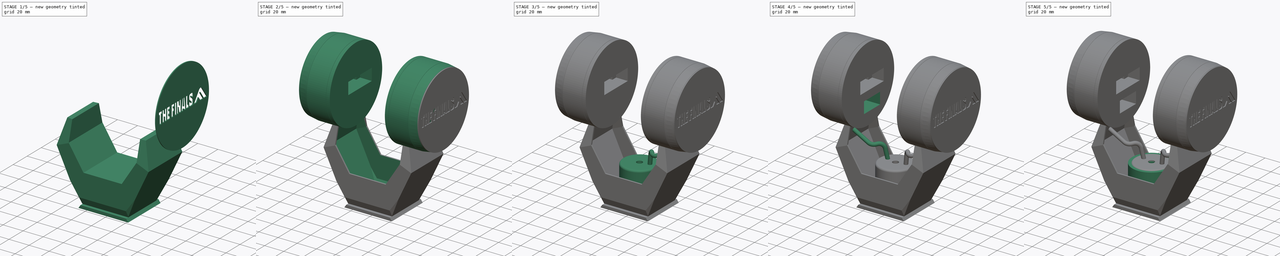
[diagram: build sequence overview — one tinted view per stage of 5, left to right]
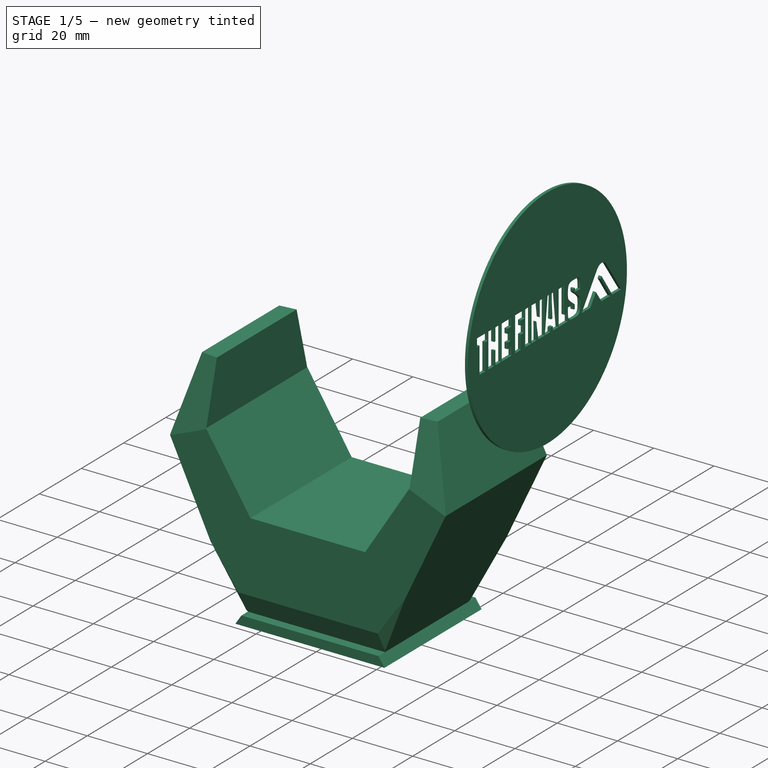
[diagram: stage 1 of 5 — iso view after this stage's code; geometry added in this stage tinted green]
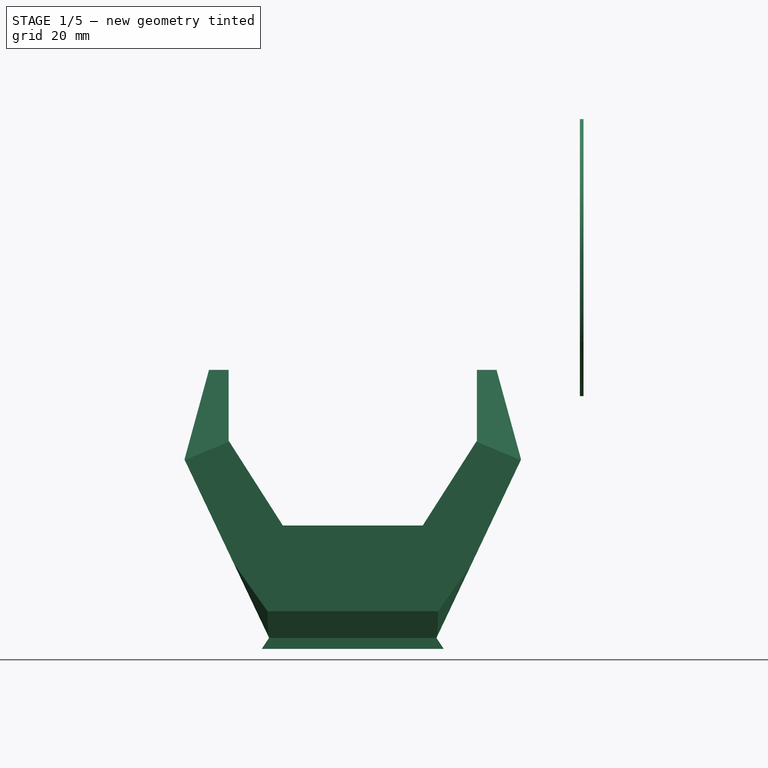
[diagram: stage 1 of 5 — front view after this stage's code; geometry added in this stage tinted green]
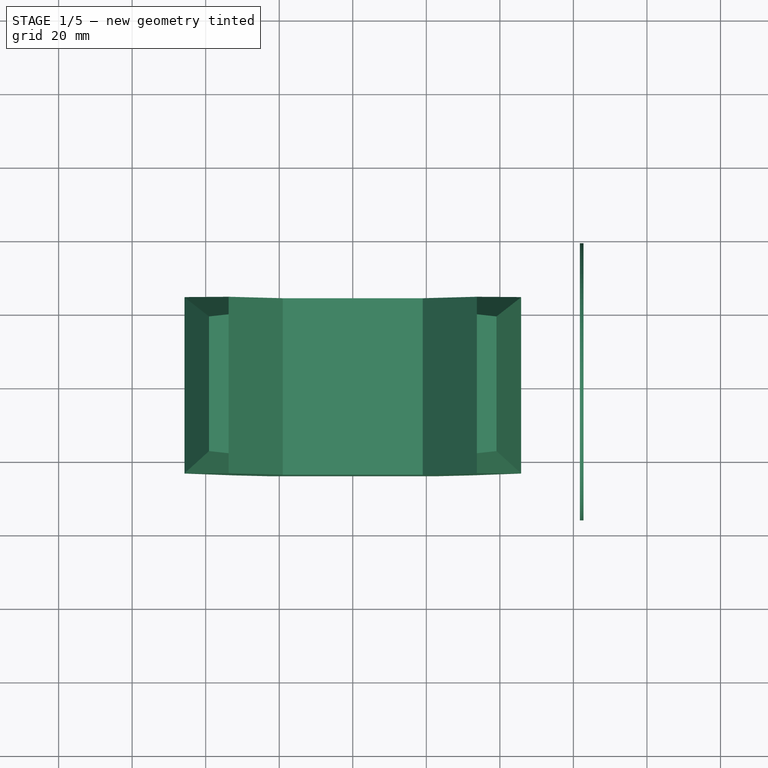
[diagram: stage 1 of 5 — top view after this stage's code; geometry added in this stage tinted green]
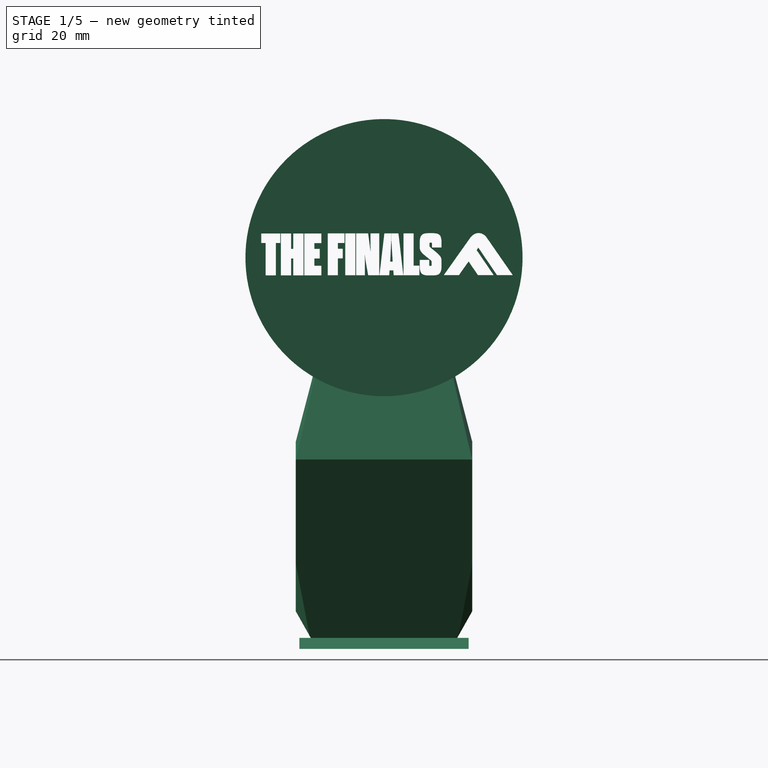
[diagram: stage 1 of 5 — right view after this stage's code; geometry added in this stage tinted green]
FCSTD DOCUMENT  (FreeCAD 1.0R39319 (Git))
Label: FinalsTurretTop
License: All rights reserved
LicenseURL: https://en.wikipedia.org/wiki/All_rights_reserved
objects: Sketcher::SketchObject×28, PartDesign::Pocket×12, Part::Feature×11, PartDesign::Pad×9, PartDesign::Plane×5, PartDesign::Mirrored×4, PartDesign::AdditiveSphere×4, Image::ImagePlane×3, PartDesign::Fillet×3, PartDesign::Body×3, PartDesign::Thickness×2, PartDesign::AdditiveLoft×1, PartDesign::Groove×1, Part::Part2DObjectPython×1, PartDesign::ShapeBinder×1, PartDesign::AdditivePipe×1, PartDesign::Hole×1, PartDesign::SubShapeBinder×1
note: 188 computed .brp shape members not serialized (recipe doc carries the construction recipe); baked Part::Feature solids carry a one-line shape summary decoded from their .brp

FEATURE [Image::ImagePlane] The_Finals_Screenshot_2025  label="The Finals Screenshot 2025"
  Placement = pos=(0,0,0) rot=(1,0,0;1.5708rad)
  XSize = 826.629
  YSize = 464.979
FEATURE [Image::ImagePlane] The_Finals_Screenshot_2026  label="The Finals Screenshot 2026"
  Placement = pos=(0,0,0) rot=(0.57735,0.57735,0.57735;2.0944rad)
  XSize = 826.63
  YSize = 464.98
FEATURE [PartDesign::Plane] DatumPlane
  AttachmentOffset = pos=(0,0,-24) rot=(0,0,1;0rad)
  AttachmentSupport = -> [XY_Plane]
  Length = 143.149
  MapMode = 5
  Placement = pos=(0,0,-24) rot=(0,0,1;0rad)
  ResizeMode = 0
  Width = 97.6978
FEATURE [Sketcher::SketchObject] Sketch
  ArcFitTolerance = 1e-06
  AttachmentSupport = -> [DatumPlane]
  FullyConstrained = true
  MakeInternals = false
  MapMode = 5
  Placement = pos=(0,0,-24) rot=(0,0,1;0rad)
  sketch-geometry (6):
    g0: LineSegment StartX=-24.755 StartY=23 StartZ=0 EndX=-24.755 EndY=-23 EndZ=0
    g1: LineSegment StartX=-24.755 StartY=-23 StartZ=0 EndX=24.755 EndY=-23 EndZ=0
    g2: LineSegment StartX=24.755 StartY=-23 StartZ=0 EndX=24.755 EndY=23 EndZ=0
    g3: LineSegment StartX=24.755 StartY=23 StartZ=0 EndX=-24.755 EndY=23 EndZ=0
    g4: LineSegment [constr] StartX=0 StartY=23 StartZ=0 EndX=0 EndY=0 EndZ=0
    g5: LineSegment [constr] StartX=0 StartY=-23 StartZ=0 EndX=0 EndY=0 EndZ=0
  constraints (16):
    c: Coincident(g0,g1)
    c: Coincident(g1,g2)
    c: Coincident(g2,g3)
    c: Coincident(g3,g0)
    c: Vertical(g0)
    c: Vertical(g2)
    c: Horizontal(g1)
    c: Horizontal(g3)
    c: Symmetric(g3,g3,g4)
    c: Coincident(g4,g-1)
    c: Vertical(g4)
    c: Symmetric(g1,g1,g5)
    c: Coincident(g5,g4)
    c: Equal(g5,g4)
    c: DistanceY(g2,g2) = 46
    c: DistanceX(g3,g3) = 49.51
FEATURE [PartDesign::Plane] DatumPlane001
  AttachmentOffset = pos=(0,0,-21) rot=(0,0,1;0rad)
  AttachmentSupport = -> [XY_Plane]
  Length = 143.149
  MapMode = 5
  Placement = pos=(0,0,-21) rot=(0,0,1;0rad)
  ResizeMode = 0
  Width = 97.6978
FEATURE [Sketcher::SketchObject] Sketch001
  ArcFitTolerance = 1e-06
  AttachmentSupport = -> [DatumPlane001]
  ExternalGeometry = -> [Sketch]
  FullyConstrained = true
  MakeInternals = false
  MapMode = 5
  Placement = pos=(0,0,-21) rot=(0,0,1;0rad)
  sketch-geometry (6):
    g0: LineSegment StartX=-22.755 StartY=23 StartZ=0 EndX=-22.755 EndY=-23 EndZ=0
    g1: LineSegment StartX=-22.755 StartY=-23 StartZ=0 EndX=22.755 EndY=-23 EndZ=0
    g2: LineSegment StartX=22.755 StartY=-23 StartZ=0 EndX=22.755 EndY=23 EndZ=0
    g3: LineSegment StartX=22.755 StartY=23 StartZ=0 EndX=-22.755 EndY=23 EndZ=0
    g4: LineSegment [constr] StartX=0 StartY=23 StartZ=0 EndX=0 EndY=0 EndZ=0
    g5: LineSegment [constr] StartX=0 StartY=0 StartZ=0 EndX=1e-16 EndY=-23 EndZ=0
  constraints (15):
    c: Coincident(g0,g1)
    c: Coincident(g1,g2)
    c: Coincident(g2,g3)
    c: Coincident(g3,g0)
    c: Vertical(g0)
    c: Vertical(g2)
    c: Horizontal(g3)
    c: Symmetric(g3,g3,g4)
    c: Coincident(g4,g-1)
    c: Vertical(g4)
    c: Coincident(g5,g4)
    c: Symmetric(g1,g1,g5)
    c: Equal(g5,g4)
    c: Tangent(g1,g-3)
    c: Distance(g2,g-5) = 2
FEATURE [PartDesign::AdditiveLoft] AdditiveLoft
  Closed = false
  Placement = pos=(0,0,-24) rot=(0,0,1;0rad)
  Profile = -> Sketch
  Refine = true
  Ruled = false
  Sections = -> [Sketch001]
  Suppressed = false
FEATURE [Sketcher::SketchObject] Sketch002
  ArcFitTolerance = 1e-06
  AttachmentSupport = -> [XZ_Plane]
  ExternalGeometry = -> [AdditiveLoft]
  FullyConstrained = true
  MakeInternals = false
  MapMode = 5
  Placement = pos=(0,0,0) rot=(1,0,0;1.5708rad)
  sketch-geometry (8):
    g0: LineSegment StartX=-22.755 StartY=-21 StartZ=0 EndX=-45.7719 EndY=27.5171 EndZ=0
    g1: LineSegment StartX=-45.7719 StartY=27.5171 StartZ=0 EndX=-39.0953 EndY=51.8892 EndZ=0
    g2: LineSegment StartX=-39.0953 StartY=51.8892 StartZ=0 EndX=-33.7553 EndY=51.8892 EndZ=0
    g3: LineSegment StartX=-33.7553 StartY=51.8892 StartZ=0 EndX=-33.7553 EndY=32.6292 EndZ=0
    g4: LineSegment StartX=-33.7553 StartY=32.6292 StartZ=0 EndX=-19.03 EndY=9.5698 EndZ=0
    g5: LineSegment StartX=-19.03 StartY=9.5698 StartZ=0 EndX=0 EndY=9.5698 EndZ=0
    g6: LineSegment StartX=0 StartY=9.5698 StartZ=0 EndX=0 EndY=-21 EndZ=0
    g7: LineSegment StartX=0 StartY=-21 StartZ=0 EndX=-22.755 EndY=-21 EndZ=0
  constraints (22):
    c: Coincident(g-3,g0)
    c: Coincident(g0,g1)
    c: Coincident(g1,g2)
    c: Horizontal(g2)
    c: Coincident(g2,g3)
    c: Vertical(g3)
    c: Coincident(g3,g4)
    c: Coincident(g4,g5)
    c: PointOnObject(g5,g-2)
    c: Horizontal(g5)
    c: Coincident(g5,g6)
    c: Symmetric(g-3,g-3,g6)
    c: Coincident(g6,g7)
    c: Coincident(g7,g0)
    c: Distance(g0,g0) = 53.7
    c: Distance(g1,g1) = 25.27
    c: DistanceX(g2,g2) = 5.34
    c: DistanceY(g3,g3) = 19.26
    c: Distance(g4,g4) = 27.36
    c: DistanceX(g5,g5) = 19.03
    c: Angle(g7,g0) = 2.01376
    c: Angle(g7,g1) = 1.30341
FEATURE [PartDesign::Pad] Pad
  BaseFeature = -> AdditiveLoft
  Direction = (0,-1,2e-16)
  Length = 24
  Length2 = 24
  Placement = pos=(0,0,-24) rot=(0,0,1;0rad)
  Profile = -> Sketch002
  ReferenceAxis = -> Sketch002 [N_Axis]
  Refine = true
  Suppressed = false
  Type = 4
FEATURE [Sketcher::SketchObject] Sketch003
  ArcFitTolerance = 1e-06
  AttachmentSupport = -> [Pad]
  FullyConstrained = true
  MakeInternals = false
  MapMode = 5
  Placement = pos=(-33.7553,0,-24) rot=(0.57735,0.57735,0.57735;2.0944rad)
  sketch-geometry (1):
    g0: Circle CenterX=0 CenterY=106.55 CenterZ=0 NormalX=0 NormalY=0 NormalZ=1 AngleXU=0 Radius=39.055
  constraints (3):
    c: PointOnObject(g0,g-2)
    c: Diameter(g0) = 78.11
    c: DistanceY(g-1,g0) = 106.55
FEATURE [Sketcher::SketchObject] Sketch004
  ArcFitTolerance = 1e-06
  AttachmentSupport = -> [YZ_Plane]
  ExternalGeometry = -> [Pad,Sketch003]
  FullyConstrained = true
  MakeInternals = false
  MapMode = 5
  Placement = pos=(0,0,0) rot=(0.57735,0.57735,0.57735;2.0944rad)
  sketch-geometry (6):
    g0: LineSegment StartX=-19.9171 StartY=-21 StartZ=0 EndX=-24 EndY=-13.7508 EndZ=0
    g1: LineSegment StartX=-24 StartY=-13.7508 StartZ=0 EndX=-24 EndY=32.6292 EndZ=0
    g2: LineSegment StartX=-24 StartY=32.6292 StartZ=0 EndX=-19.7661 EndY=48.8662 EndZ=0
    g3: LineSegment StartX=-19.9171 StartY=-21 StartZ=0 EndX=-29.0171 EndY=-21 EndZ=0
    g4: LineSegment StartX=-29.0171 StartY=-21 StartZ=0 EndX=-29.0171 EndY=56.41 EndZ=0
    g5: ArcOfCircle CenterX=0 CenterY=82.55 CenterZ=0 NormalX=0 NormalY=0 NormalZ=1 AngleXU=0 Radius=39.055 StartAngle=3.87488 EndAngle=4.18172
  constraints (17):
    c: PointOnObject(g0,g-7)
    c: PointOnObject(g0,g-3)
    c: Coincident(g0,g1)
    c: Coincident(g1,g-5)
    c: Coincident(g1,g2)
    c: PointOnObject(g2,g-8)
    c: Coincident(g0,g3)
    c: Horizontal(g3)
    c: Coincident(g3,g4)
    c: Vertical(g4)
    c: Coincident(g5,g-8)
    c: Coincident(g5,g4)
    c: Coincident(g5,g2)
    c: DistanceX(g3,g3) = 9.1
    c: DistanceY(g4,g4) = 77.41
    c: Distance(g2,g2) = 16.78
    c: DistanceY(g1,g1) = 46.38
FEATURE [PartDesign::Pocket] Pocket
  BaseFeature = -> Pad
  Direction = (-1,0,0)
  Length = 5
  Length2 = 5
  Placement = pos=(0,0,-24) rot=(0,0,1;0rad)
  Profile = -> Sketch004
  ReferenceAxis = -> Sketch004 [N_Axis]
  Refine = true
  Suppressed = false
  Type = 1
FEATURE [PartDesign::Plane] DatumPlane002
  AttachmentOffset = pos=(-33,0,0) rot=(0,-1,0;0.10472rad)
  AttachmentSupport = -> [Pocket]
  Length = 164.089
  MapMode = 5
  Placement = pos=(-33,-36.2984,-14.5349) rot=(0.996347,-0.067578,-0.052216;1.31926rad)
  ResizeMode = 0
  Width = 191.05
FEATURE [Sketcher::SketchObject] Sketch005
  ArcFitTolerance = 1e-06
  AttachmentSupport = -> [DatumPlane002]
  FullyConstrained = false
  MakeInternals = false
  MapMode = 5
  Placement = pos=(-33,-36.2984,-14.5349) rot=(0.996347,-0.067578,-0.052216;1.31926rad)
  sketch-geometry (4):
    g0: LineSegment StartX=-23.4012 StartY=78.9352 StartZ=0 EndX=-23.4012 EndY=33.3036 EndZ=0
    g1: LineSegment StartX=-23.4012 StartY=33.3036 StartZ=0 EndX=12.854 EndY=33.3036 EndZ=0
    g2: LineSegment StartX=12.854 StartY=33.3036 StartZ=0 EndX=12.854 EndY=78.9352 EndZ=0
    g3: LineSegment StartX=12.854 StartY=78.9352 StartZ=0 EndX=-23.4012 EndY=78.9352 EndZ=0
  constraints (8):
    c: Coincident(g0,g1)
    c: Coincident(g1,g2)
    c: Coincident(g2,g3)
    c: Coincident(g3,g0)
    c: Vertical(g0)
    c: Vertical(g2)
    c: Horizontal(g1)
    c: Horizontal(g3)
FEATURE [PartDesign::Pocket] Pocket001
  BaseFeature = -> Pocket
  Direction = (0.104528,0.962343,-0.250938)
  Length = 6
  Length2 = 5
  Placement = pos=(0,0,-24) rot=(0,0,1;0rad)
  Profile = -> Sketch005
  ReferenceAxis = -> Sketch005 [N_Axis]
  Refine = true
  Reversed = true
  Suppressed = false
  Type = 0
FEATURE [PartDesign::Plane] DatumPlane003
  AttachmentOffset = pos=(27,6,-8) rot=(0.145809,0.987467,-0.060396;0.794356rad)
  AttachmentSupport = -> [Pocket001]
  Length = 215.847
  MapMode = 5
  Placement = pos=(-12.7567,-27,-23.4109) rot=(0.864465,-0.489868,-0.112829;2.01432rad)
  ResizeMode = 0
  Width = 232.252
FEATURE [Sketcher::SketchObject] Sketch006
  ArcFitTolerance = 1e-06
  AttachmentSupport = -> [DatumPlane003]
  FullyConstrained = false
  MakeInternals = false
  MapMode = 5
  Placement = pos=(-12.7567,-27,-23.4109) rot=(0.864465,-0.489868,-0.112829;2.01432rad)
  sketch-geometry (4):
    g0: LineSegment StartX=-16.0002 StartY=30.9139 StartZ=0 EndX=-16.0002 EndY=6.91616 EndZ=0
    g1: LineSegment StartX=-16.0002 StartY=6.91616 StartZ=0 EndX=-2.05104 EndY=6.91616 EndZ=0
    g2: LineSegment StartX=-2.05104 StartY=6.91616 StartZ=0 EndX=-2.05104 EndY=30.9139 EndZ=0
    g3: LineSegment StartX=-2.05104 StartY=30.9139 StartZ=0 EndX=-16.0002 EndY=30.9139 EndZ=0
  constraints (8):
    c: Coincident(g0,g1)
    c: Coincident(g1,g2)
    c: Coincident(g2,g3)
    c: Coincident(g3,g0)
    c: Vertical(g0)
    c: Vertical(g2)
    c: Horizontal(g1)
    c: Horizontal(g3)
FEATURE [PartDesign::Pocket] Pocket002
  BaseFeature = -> Pocket001
  Direction = (0.581863,0.701836,0.410928)
  Length = 5
  Length2 = 5
  Placement = pos=(0,0,-24) rot=(0,0,1;0rad)
  Profile = -> Sketch006
  ReferenceAxis = -> Sketch006 [N_Axis]
  Refine = true
  Reversed = true
  Suppressed = false
  Type = 0
FEATURE [PartDesign::Mirrored] Mirrored
  BaseFeature = -> Pocket002
  MirrorPlane = -> XZ_Plane
  Originals = -> [Pocket002,Pocket001,Pocket]
  Placement = pos=(0,0,-24) rot=(0,0,1;0rad)
  Refine = true
  Suppressed = false
  TransformMode = 0
FEATURE [PartDesign::Mirrored] Mirrored001
  BaseFeature = -> Mirrored
  MirrorPlane = -> YZ_Plane
  Originals = -> [Pad,Pocket002,Pocket001,Pocket]
  Placement = pos=(0,0,-24) rot=(0,0,1;0rad)
  Refine = true
  Suppressed = false
  TransformMode = 1
FEATURE [PartDesign::Body] Body
  AllowCompound = false
  Group = -> [DatumPlane,Sketch,DatumPlane001,Sketch001,AdditiveLoft,Sketch002,Pad,Sketch003,Sketch004,Pocket,DatumPlane002,Sketch005,Pocket001,DatumPlane003,Sketch006,Pocket002,Mirrored,Mirrored001,Thickness,Thickness001,Pad001,Sketch007,Groove,Mirrored002,Sketch009,Pocket003,Sketch010,Pocket004,Sketch011,Pocket005,Sketch012,Pad002,Fillet,Sketch013,Pocket006,Sketch017,Pad003,Fillet002,Sketch018,Pocket009,+24 more]
  Origin = -> Origin
  Tip = -> Sphere007
FEATURE [Part::Feature] path22
  shape: bbox 352.2 x 214.8 x 2.667e-07 mm, 1 faces, 0 solids (baked)
FEATURE [Part::Feature] path030
  shape: bbox 122 x 213.9 x 2.667e-07 mm, 1 faces, 0 solids (baked)
FEATURE [Part::Feature] path031
  shape: bbox 87.71 x 213.7 x 2.667e-07 mm, 1 faces, 0 solids (baked)
FEATURE [Part::Feature] path032
  shape: bbox 114.9 x 213.7 x 2.667e-07 mm, 1 faces, 0 solids (baked)
FEATURE [Part::Feature] path033
  shape: bbox 96.57 x 213.7 x 2.667e-07 mm, 1 faces, 0 solids (baked)
FEATURE [Part::Feature] path034
  shape: bbox 112.7 x 215.6 x 2.667e-07 mm, 1 faces, 0 solids (baked)
FEATURE [Part::Feature] path035
  shape: bbox 81.29 x 213.7 x 2.667e-07 mm, 1 faces, 0 solids (baked)
FEATURE [Part::Feature] path036
  shape: bbox 118 x 213.7 x 2.667e-07 mm, 1 faces, 0 solids (baked)
FEATURE [Part::Feature] path037
  shape: bbox 51.95 x 213.7 x 2.667e-07 mm, 1 faces, 0 solids (baked)
FEATURE [Part::Feature] path038
  shape: bbox 85.57 x 213.7 x 2.667e-07 mm, 1 faces, 0 solids (baked)
FEATURE [Part::Feature] path30
  shape: bbox 12.54 x 107.6 x 2.667e-07 mm, 1 faces, 0 solids (baked)
FEATURE [PartDesign::SubShapeBinder] Binder
  BindCopyOnChange = 0
  BindMode = 0
  ClaimChildren = false
  Context = -> Body002 [Binder.]
  Fuse = false
  MakeFace = true
  OffsetFill = false
  OffsetIntersection = false
  OffsetJoinType = 0
  OffsetOpenResult = false
  PartialLoad = false
  Refine = true
  Relative = true
  Support = -> [Body[Sphere007.Face147]]
  _Version = 2
FEATURE [Sketcher::SketchObject] Sketch031
  ArcFitTolerance = 1e-06
  AttachmentSupport = -> [Binder]
  FullyConstrained = false
  MakeInternals = false
  MapMode = 5
  Placement = pos=(61.7553,0,0) rot=(0.57735,0.57735,0.57735;2.0944rad)
  sketch-geometry (119):
    g0: BSplineCurve PolesCount=2 KnotsCount=2 Degree=1 IsPeriodic=0
    g1: BSplineCurve PolesCount=2 KnotsCount=2 Degree=1 IsPeriodic=0
    g2: BSplineCurve PolesCount=4 KnotsCount=2 Degree=3 IsPeriodic=0
    g3: BSplineCurve PolesCount=4 KnotsCount=2 Degree=3 IsPeriodic=0
    g4: BSplineCurve PolesCount=2 KnotsCount=2 Degree=1 IsPeriodic=0
    g5: BSplineCurve PolesCount=2 KnotsCount=2 Degree=1 IsPeriodic=0
    g6: BSplineCurve PolesCount=2 KnotsCount=2 Degree=1 IsPeriodic=0
    g7: BSplineCurve PolesCount=2 KnotsCount=2 Degree=1 IsPeriodic=0
    g8: BSplineCurve PolesCount=2 KnotsCount=2 Degree=1 IsPeriodic=0
    g9: BSplineCurve PolesCount=2 KnotsCount=2 Degree=1 IsPeriodic=0
    g10: BSplineCurve PolesCount=2 KnotsCount=2 Degree=1 IsPeriodic=0
    g11: BSplineCurve PolesCount=2 KnotsCount=2 Degree=1 IsPeriodic=0
    g12: BSplineCurve PolesCount=4 KnotsCount=2 Degree=3 IsPeriodic=0
    g13: BSplineCurve PolesCount=2 KnotsCount=2 Degree=1 IsPeriodic=0
    g14: BSplineCurve PolesCount=2 KnotsCount=2 Degree=1 IsPeriodic=0
    g15: BSplineCurve PolesCount=2 KnotsCount=2 Degree=1 IsPeriodic=0
    g16: BSplineCurve PolesCount=2 KnotsCount=2 Degree=1 IsPeriodic=0
    g17: BSplineCurve PolesCount=2 KnotsCount=2 Degree=1 IsPeriodic=0
    g18: BSplineCurve PolesCount=2 KnotsCount=2 Degree=1 IsPeriodic=0
    g19: BSplineCurve PolesCount=2 KnotsCount=2 Degree=1 IsPeriodic=0
    g20: BSplineCurve PolesCount=2 KnotsCount=2 Degree=1 IsPeriodic=0
    g21: BSplineCurve PolesCount=2 KnotsCount=2 Degree=1 IsPeriodic=0
    g22: BSplineCurve PolesCount=2 KnotsCount=2 Degree=1 IsPeriodic=0
    g23: BSplineCurve PolesCount=2 KnotsCount=2 Degree=1 IsPeriodic=0
    g24: BSplineCurve PolesCount=2 KnotsCount=2 Degree=1 IsPeriodic=0
    g25: BSplineCurve PolesCount=2 KnotsCount=2 Degree=1 IsPeriodic=0
    g26: BSplineCurve PolesCount=2 KnotsCount=2 Degree=1 IsPeriodic=0
    g27: BSplineCurve PolesCount=2 KnotsCount=2 Degree=1 IsPeriodic=0
    g28: BSplineCurve PolesCount=2 KnotsCount=2 Degree=1 IsPeriodic=0
    g29: BSplineCurve PolesCount=2 KnotsCount=2 Degree=1 IsPeriodic=0
    g30: BSplineCurve PolesCount=2 KnotsCount=2 Degree=1 IsPeriodic=0
    g31: BSplineCurve PolesCount=2 KnotsCount=2 Degree=1 IsPeriodic=0
    g32: BSplineCurve PolesCount=2 KnotsCount=2 Degree=1 IsPeriodic=0
    g33: BSplineCurve PolesCount=2 KnotsCount=2 Degree=1 IsPeriodic=0
    g34: BSplineCurve PolesCount=2 KnotsCount=2 Degree=1 IsPeriodic=0
    g35: BSplineCurve PolesCount=2 KnotsCount=2 Degree=1 IsPeriodic=0
    g36: BSplineCurve PolesCount=2 KnotsCount=2 Degree=1 IsPeriodic=0
    g37: BSplineCurve PolesCount=2 KnotsCount=2 Degree=1 IsPeriodic=0
    g38: BSplineCurve PolesCount=2 KnotsCount=2 Degree=1 IsPeriodic=0
    g39: BSplineCurve PolesCount=2 KnotsCount=2 Degree=1 IsPeriodic=0
    g40: BSplineCurve PolesCount=2 KnotsCount=2 Degree=1 IsPeriodic=0
    g41: BSplineCurve PolesCount=2 KnotsCount=2 Degree=1 IsPeriodic=0
    g42: BSplineCurve PolesCount=2 KnotsCount=2 Degree=1 IsPeriodic=0
    g43: BSplineCurve PolesCount=2 KnotsCount=2 Degree=1 IsPeriodic=0
    g44: BSplineCurve PolesCount=2 KnotsCount=2 Degree=1 IsPeriodic=0
    g45: BSplineCurve PolesCount=2 KnotsCount=2 Degree=1 IsPeriodic=0
    g46: BSplineCurve PolesCount=2 KnotsCount=2 Degree=1 IsPeriodic=0
    g47: BSplineCurve PolesCount=2 KnotsCount=2 Degree=1 IsPeriodic=0
    g48: BSplineCurve PolesCount=2 KnotsCount=2 Degree=1 IsPeriodic=0
    g49: BSplineCurve PolesCount=2 KnotsCount=2 Degree=1 IsPeriodic=0
    g50: BSplineCurve PolesCount=2 KnotsCount=2 Degree=1 IsPeriodic=0
    g51: BSplineCurve PolesCount=2 KnotsCount=2 Degree=1 IsPeriodic=0
    g52: BSplineCurve PolesCount=2 KnotsCount=2 Degree=1 IsPeriodic=0
    g53: BSplineCurve PolesCount=2 KnotsCount=2 Degree=1 IsPeriodic=0
    g54: BSplineCurve PolesCount=2 KnotsCount=2 Degree=1 IsPeriodic=0
    g55: BSplineCurve PolesCount=2 KnotsCount=2 Degree=1 IsPeriodic=0
    g56: BSplineCurve PolesCount=4 KnotsCount=2 Degree=3 IsPeriodic=0
    g57: BSplineCurve PolesCount=2 KnotsCount=2 Degree=1 IsPeriodic=0
    g58: BSplineCurve PolesCount=4 KnotsCount=2 Degree=3 IsPeriodic=0
    g59: BSplineCurve PolesCount=2 KnotsCount=2 Degree=1 IsPeriodic=0
    g60: BSplineCurve PolesCount=4 KnotsCount=2 Degree=3 IsPeriodic=0
    g61: BSplineCurve PolesCount=4 KnotsCount=2 Degree=3 IsPeriodic=0
    g62: BSplineCurve PolesCount=2 KnotsCount=2 Degree=1 IsPeriodic=0
    g63: BSplineCurve PolesCount=4 KnotsCount=2 Degree=3 IsPeriodic=0
    g64: BSplineCurve PolesCount=2 KnotsCount=2 Degree=1 IsPeriodic=0
    g65: BSplineCurve PolesCount=4 KnotsCount=2 Degree=3 IsPeriodic=0
    g66: BSplineCurve PolesCount=2 KnotsCount=2 Degree=1 IsPeriodic=0
    g67: BSplineCurve PolesCount=2 KnotsCount=2 Degree=1 IsPeriodic=0
    g68: BSplineCurve PolesCount=2 KnotsCount=2 Degree=1 IsPeriodic=0
    g69: BSplineCurve PolesCount=4 KnotsCount=2 Degree=3 IsPeriodic=0
    g70: BSplineCurve PolesCount=2 KnotsCount=2 Degree=1 IsPeriodic=0
    g71: BSplineCurve PolesCount=4 KnotsCount=2 Degree=3 IsPeriodic=0
    g72: BSplineCurve PolesCount=2 KnotsCount=2 Degree=1 IsPeriodic=0
    g73: BSplineCurve PolesCount=4 KnotsCount=2 Degree=3 IsPeriodic=0
    g74: BSplineCurve PolesCount=4 KnotsCount=2 Degree=3 IsPeriodic=0
    g75: BSplineCurve PolesCount=2 KnotsCount=2 Degree=1 IsPeriodic=0
    g76: BSplineCurve PolesCount=4 KnotsCount=2 Degree=3 IsPeriodic=0
    g77: BSplineCurve PolesCount=2 KnotsCount=2 Degree=1 IsPeriodic=0
    g78: BSplineCurve PolesCount=4 KnotsCount=2 Degree=3 IsPeriodic=0
    g79: BSplineCurve PolesCount=2 KnotsCount=2 Degree=1 IsPeriodic=0
    g80: BSplineCurve PolesCount=2 KnotsCount=2 Degree=1 IsPeriodic=0
    g81: BSplineCurve PolesCount=2 KnotsCount=2 Degree=1 IsPeriodic=0
    g82: BSplineCurve PolesCount=2 KnotsCount=2 Degree=1 IsPeriodic=0
    g83: BSplineCurve PolesCount=2 KnotsCount=2 Degree=1 IsPeriodic=0
    g84: BSplineCurve PolesCount=2 KnotsCount=2 Degree=1 IsPeriodic=0
    g85: BSplineCurve PolesCount=2 KnotsCount=2 Degree=1 IsPeriodic=0
    g86: BSplineCurve PolesCount=4 KnotsCount=2 Degree=3 IsPeriodic=0
    g87: BSplineCurve PolesCount=4 KnotsCount=2 Degree=3 IsPeriodic=0
    g88: BSplineCurve PolesCount=2 KnotsCount=2 Degree=1 IsPeriodic=0
    g89: BSplineCurve PolesCount=2 KnotsCount=2 Degree=1 IsPeriodic=0
    g90: BSplineCurve PolesCount=2 KnotsCount=2 Degree=1 IsPeriodic=0
    g91: BSplineCurve PolesCount=2 KnotsCount=2 Degree=1 IsPeriodic=0
    g92: BSplineCurve PolesCount=2 KnotsCount=2 Degree=1 IsPeriodic=0
    g93: BSplineCurve PolesCount=4 KnotsCount=2 Degree=3 IsPeriodic=0
    g94: BSplineCurve PolesCount=4 KnotsCount=2 Degree=3 IsPeriodic=0
    g95: BSplineCurve PolesCount=2 KnotsCount=2 Degree=1 IsPeriodic=0
    g96: BSplineCurve PolesCount=2 KnotsCount=2 Degree=1 IsPeriodic=0
    g97: BSplineCurve PolesCount=2 KnotsCount=2 Degree=1 IsPeriodic=0
    g98: BSplineCurve PolesCount=2 KnotsCount=2 Degree=1 IsPeriodic=0
    g99: BSplineCurve PolesCount=2 KnotsCount=2 Degree=1 IsPeriodic=0
    g100: BSplineCurve PolesCount=2 KnotsCount=2 Degree=1 IsPeriodic=0
    g101: BSplineCurve PolesCount=2 KnotsCount=2 Degree=1 IsPeriodic=0
    g102: BSplineCurve PolesCount=2 KnotsCount=2 Degree=1 IsPeriodic=0
    g103: BSplineCurve PolesCount=2 KnotsCount=2 Degree=1 IsPeriodic=0
    g104: BSplineCurve PolesCount=2 KnotsCount=2 Degree=1 IsPeriodic=0
    g105: BSplineCurve PolesCount=2 KnotsCount=2 Degree=1 IsPeriodic=0
    g106: BSplineCurve PolesCount=2 KnotsCount=2 Degree=1 IsPeriodic=0
    g107: BSplineCurve PolesCount=2 KnotsCount=2 Degree=1 IsPeriodic=0
    g108: BSplineCurve PolesCount=2 KnotsCount=2 Degree=1 IsPeriodic=0
    g109: BSplineCurve PolesCount=2 KnotsCount=2 Degree=1 IsPeriodic=0
    g110: BSplineCurve PolesCount=2 KnotsCount=2 Degree=1 IsPeriodic=0
    g111: BSplineCurve PolesCount=2 KnotsCount=2 Degree=1 IsPeriodic=0
    g112: BSplineCurve PolesCount=2 KnotsCount=2 Degree=1 IsPeriodic=0
    g113: BSplineCurve PolesCount=2 KnotsCount=2 Degree=1 IsPeriodic=0
    g114: Circle CenterX=0 CenterY=82.4084 CenterZ=0 NormalX=0 NormalY=0 NormalZ=1 AngleXU=0 Radius=37.6857
    g115: LineSegment StartX=2.01533 StartY=87.0421 StartZ=0 EndX=2.01533 EndY=89.0125 EndZ=0
    g116: LineSegment StartX=2.01533 StartY=89.0125 StartZ=0 EndX=1.96016 EndY=89.0125 EndZ=0
    g117: LineSegment StartX=1.96016 StartY=89.0125 StartZ=0 EndX=1.96016 EndY=87.0421 EndZ=0
    g118: LineSegment StartX=1.68949 StartY=81.3101 StartZ=0 EndX=1.96016 EndY=87.0421 EndZ=0
  constraints (122):
    c: Coincident(g0,g1)
    c: Coincident(g1,g2)
    c: Coincident(g2,g3)
    c: Coincident(g3,g4)
    c: Coincident(g4,g5)
    c: Coincident(g5,g6)
    c: Coincident(g6,g7)
    c: Coincident(g7,g8)
    c: Coincident(g8,g9)
    c: Coincident(g9,g10)
    c: Coincident(g10,g11)
    c: Coincident(g11,g0)
    c: Coincident(g12,g13)
    c: Coincident(g14,g15)
    c: Coincident(g15,g16)
    c: Coincident(g16,g17)
    c: Coincident(g17,g18)
    c: Coincident(g18,g19)
    c: Coincident(g19,g20)
    c: Coincident(g20,g21)
    c: Coincident(g21,g14)
    c: Coincident(g22,g23)
    c: Coincident(g23,g24)
    c: Coincident(g24,g25)
    c: Coincident(g25,g26)
    c: Coincident(g26,g27)
    c: Coincident(g27,g28)
    c: Coincident(g28,g29)
    c: Coincident(g29,g30)
    c: Coincident(g30,g31)
    c: Coincident(g31,g32)
    c: Coincident(g32,g33)
    c: Coincident(g33,g22)
    c: Coincident(g34,g35)
    c: Coincident(g35,g36)
    c: Coincident(g36,g37)
    c: Coincident(g37,g38)
    c: Coincident(g38,g39)
    c: Coincident(g39,g40)
    c: Coincident(g40,g41)
    c: Coincident(g41,g42)
    c: Coincident(g42,g43)
    c: Coincident(g43,g44)
    c: Coincident(g44,g45)
    c: Coincident(g45,g34)
    c: Coincident(g46,g47)
    c: Coincident(g47,g48)
    c: Coincident(g48,g49)
    c: Coincident(g49,g50)
    c: Coincident(g50,g51)
    c: Coincident(g51,g52)
    c: Coincident(g52,g53)
    c: Coincident(g53,g46)
    c: Coincident(g54,g55)
    c: Coincident(g55,g56)
    c: Coincident(g56,g57)
    c: Coincident(g57,g58)
    c: Coincident(g58,g59)
    c: Coincident(g59,g60)
    c: Coincident(g60,g61)
    c: Coincident(g61,g62)
    c: Coincident(g62,g63)
    c: Coincident(g63,g64)
    c: Coincident(g64,g65)
    c: Coincident(g65,g66)
    c: Coincident(g66,g67)
    c: Coincident(g67,g68)
    c: Coincident(g68,g69)
    c: Coincident(g69,g70)
    c: Coincident(g70,g71)
    c: Coincident(g71,g72)
    c: Coincident(g72,g73)
    c: Coincident(g73,g74)
    c: Coincident(g74,g75)
    c: Coincident(g75,g76)
    c: Coincident(g76,g77)
    c: Coincident(g77,g78)
    c: Coincident(g78,g79)
    c: Coincident(g79,g54)
    c: Coincident(g80,g81)
    c: Coincident(g81,g82)
    c: Coincident(g82,g83)
    c: Coincident(g83,g84)
    c: Coincident(g84,g85)
    c: Coincident(g85,g80)
    c: Coincident(g86,g87)
    c: Coincident(g87,g88)
    c: Coincident(g88,g89)
    c: Coincident(g89,g90)
    c: Coincident(g90,g91)
    c: Coincident(g91,g92)
    c: Coincident(g92,g93)
    c: Coincident(g93,g94)
    c: Coincident(g94,g95)
    c: Coincident(g95,g96)
    c: Coincident(g96,g97)
    c: Coincident(g97,g98)
    c: Coincident(g98,g99)
    c: Coincident(g99,g86)
    c: Coincident(g100,g101)
    c: Coincident(g101,g102)
    c: Coincident(g102,g103)
    c: Coincident(g103,g100)
    c: Coincident(g104,g105)
    c: Coincident(g105,g106)
    c: Coincident(g106,g107)
    c: Coincident(g107,g108)
    c: Coincident(g108,g109)
    c: Coincident(g109,g110)
    c: Coincident(g110,g111)
    c: Coincident(g111,g112)
    c: Coincident(g112,g113)
    c: Coincident(g113,g104)
    c: PointOnObject(g114,g-2)
    c: Coincident(g115,g116)
    c: Coincident(g116,g117)
    c: Vertical(g115)
    c: Vertical(g117)
    c: Horizontal(g116)
    c: PointOnObject(g116,g21)
    c: Coincident(g118,g13)
    c: Coincident(g118,g117)
FEATURE [PartDesign::Pad] Pad008
  Direction = (1,0,0)
  Length = 1
  Length2 = 10
  Profile = -> Sketch031
  ReferenceAxis = -> Sketch031 [N_Axis]
  Refine = true
  Suppressed = false
  Type = 0
FEATURE [PartDesign::Body] Body002  label="LogoStencil"
  AllowCompound = false
  Group = -> [Binder,Sketch031,Pad008]
  Origin = -> Origin002
  Tip = -> Pad008
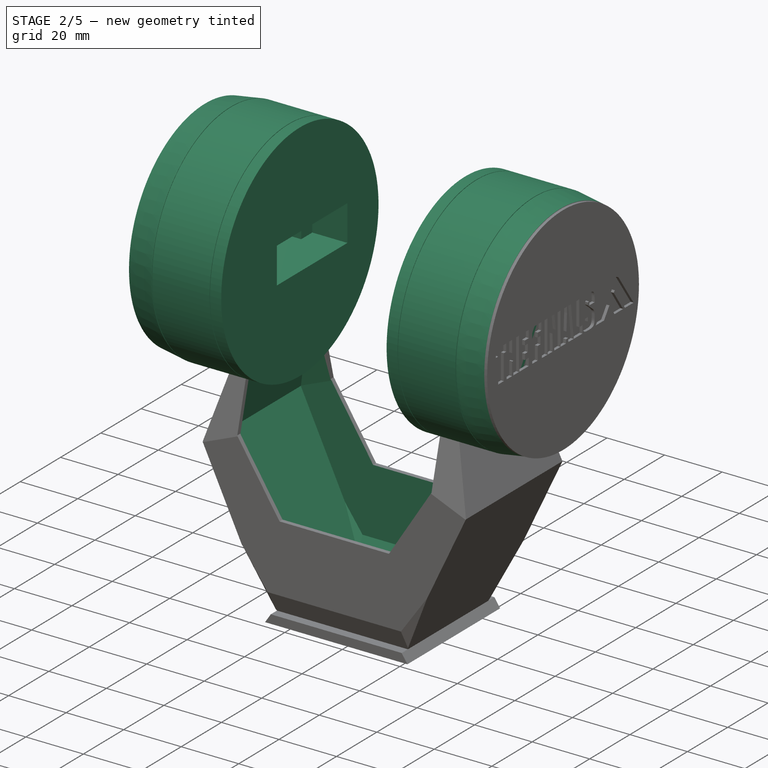
[diagram: stage 2 of 5 — iso view after this stage's code; geometry added in this stage tinted green]
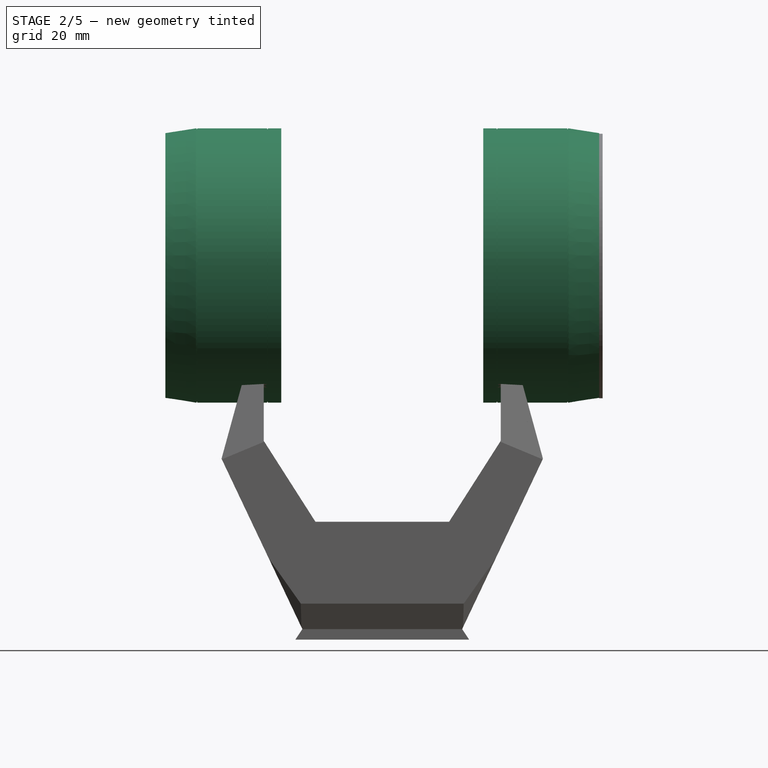
[diagram: stage 2 of 5 — front view after this stage's code; geometry added in this stage tinted green]
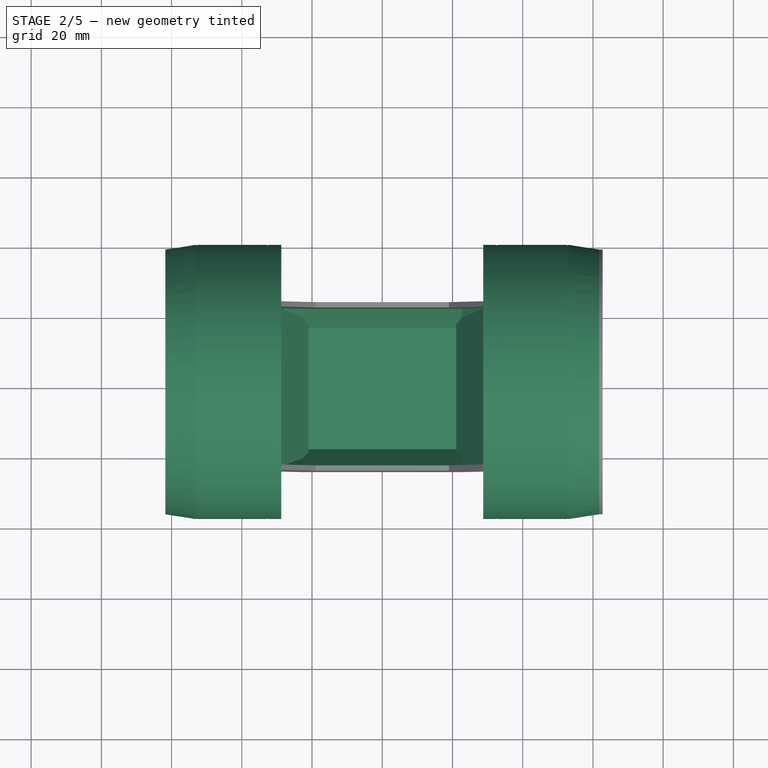
[diagram: stage 2 of 5 — top view after this stage's code; geometry added in this stage tinted green]
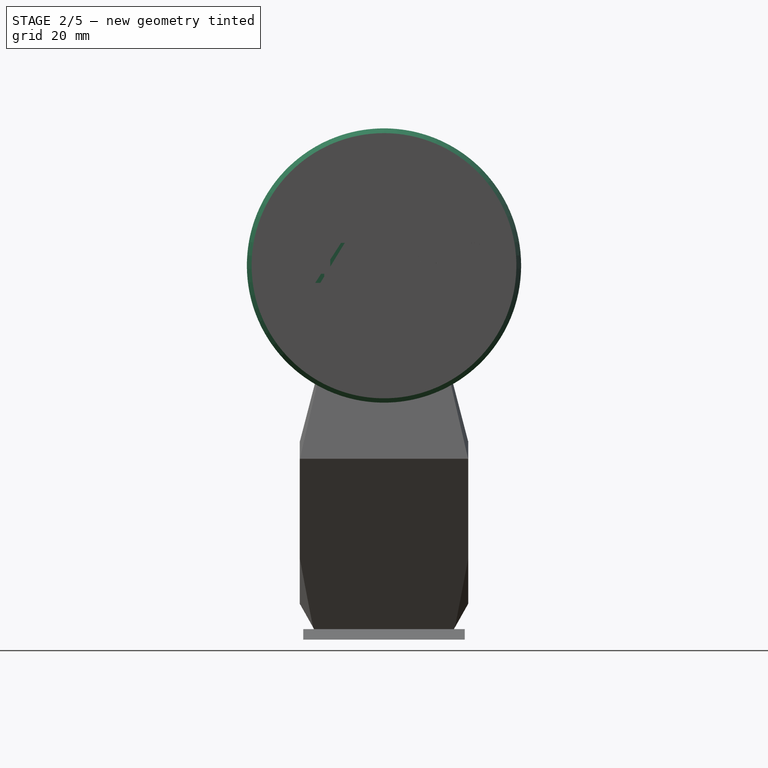
[diagram: stage 2 of 5 — right view after this stage's code; geometry added in this stage tinted green]
FEATURE [PartDesign::Thickness] Thickness
  Base = -> Mirrored001 [Face30]
  BaseFeature = -> Mirrored001
  Intersection = false
  Join = 0
  Mode = 0
  Refine = true
  Reversed = true
  SupportTransform = false
  Suppressed = false
  Value = 2
FEATURE [PartDesign::Thickness] Thickness001
  Base = -> Thickness [Face30,Face23,Face24,Face20,Face21]
  BaseFeature = -> Thickness
  Intersection = true
  Join = 1
  Mode = 2
  Refine = true
  Reversed = true
  SupportTransform = false
  Suppressed = false
  Value = 1.5
FEATURE [PartDesign::Pad] Pad001
  BaseFeature = -> Thickness001
  Direction = (1,0,0)
  Length = 5
  Length2 = 28
  Profile = -> Sketch003
  ReferenceAxis = -> Sketch003 [N_Axis]
  Refine = true
  Suppressed = false
  Type = 4
FEATURE [Sketcher::SketchObject] Sketch007
  ArcFitTolerance = 1e-06
  AttachmentSupport = -> [XZ_Plane]
  ExternalGeometry = -> [Pad001]
  FullyConstrained = false
  MakeInternals = false
  MapMode = 5
  Placement = pos=(0,0,0) rot=(1,0,0;1.5708rad)
  sketch-geometry (13):
    g0: LineSegment [constr] StartX=-61.7553 StartY=121.605 StartZ=0 EndX=-28.7553 EndY=121.605 EndZ=0
    g1: LineSegment StartX=-62.4673 StartY=120.139 StartZ=0 EndX=-53.0883 EndY=121.605 EndZ=0
    g2: LineSegment StartX=-62.4673 StartY=120.139 StartZ=0 EndX=-62.4673 EndY=130.867 EndZ=0
    g3: LineSegment StartX=-62.4673 StartY=130.867 StartZ=0 EndX=-53.0883 EndY=130.867 EndZ=0
    g4: LineSegment StartX=-53.0883 StartY=130.867 StartZ=0 EndX=-53.0883 EndY=121.605 EndZ=0
    g5: LineSegment StartX=-32.7767 StartY=123.172 StartZ=0 EndX=-32.7767 EndY=121.405 EndZ=0
    g6: LineSegment StartX=-32.7767 StartY=121.405 StartZ=0 EndX=-32.5767 EndY=121.405 EndZ=0
    g7: LineSegment StartX=-32.5767 StartY=121.405 StartZ=0 EndX=-32.5767 EndY=123.172 EndZ=0
    g8: LineSegment StartX=-32.5767 StartY=123.172 StartZ=0 EndX=-32.7767 EndY=123.172 EndZ=0
    g9: LineSegment StartX=-52.893 StartY=123.066 StartZ=0 EndX=-52.893 EndY=121.405 EndZ=0
    g10: LineSegment StartX=-52.893 StartY=121.405 StartZ=0 EndX=-52.693 EndY=121.405 EndZ=0
    g11: LineSegment StartX=-52.693 StartY=121.405 StartZ=0 EndX=-52.693 EndY=123.066 EndZ=0
    g12: LineSegment StartX=-52.693 StartY=123.066 StartZ=0 EndX=-52.893 EndY=123.066 EndZ=0
  constraints (30):
    c: Coincident(g0,g-3)
    c: Coincident(g0,g-4)
    c: PointOnObject(g1,g0)
    c: Coincident(g2,g1)
    c: Vertical(g2)
    c: Coincident(g2,g3)
    c: Horizontal(g3)
    c: Coincident(g3,g4)
    c: Coincident(g4,g1)
    c: Vertical(g4)
    c: Coincident(g5,g6)
    c: Coincident(g6,g7)
    c: Coincident(g7,g8)
    c: Coincident(g8,g5)
    c: Vertical(g5)
    c: Vertical(g7)
    c: Horizontal(g6)
    c: Horizontal(g8)
    c: DistanceX(g6,g6) = 0.2
    c: Coincident(g9,g10)
    c: Coincident(g10,g11)
    c: Coincident(g11,g12)
    c: Coincident(g12,g9)
    c: Vertical(g9)
    c: Vertical(g11)
    c: Horizontal(g10)
    c: Horizontal(g12)
    c: DistanceX(g10,g10) = 0.2
    c: Distance(g0,g10) = 0.2
    c: Distance(g0,g6) = 0.2
FEATURE [PartDesign::Groove] Groove
  Angle = 360
  Angle2 = 60
  Axis = (1,0,0)
  Base = (-28.7553,0,82.55)
  BaseFeature = -> Pad001
  Profile = -> Sketch007
  ReferenceAxis = -> Pad001 [Edge72]
  Refine = true
  Reversed = true
  Suppressed = false
  Type = 0
FEATURE [PartDesign::Mirrored] Mirrored002
  BaseFeature = -> Groove
  MirrorPlane = -> Sketch007 [V_Axis]
  Originals = -> [Pad001,Groove]
  Refine = true
  Suppressed = false
  TransformMode = 0
FEATURE [Sketcher::SketchObject] Sketch009
  ArcFitTolerance = 1e-06
  AttachmentSupport = -> [YZ_Plane]
  ExternalGeometry = -> [Mirrored002]
  FullyConstrained = true
  MakeInternals = false
  MapMode = 5
  Placement = pos=(0,0,0) rot=(0.57735,0.57735,0.57735;2.0944rad)
  sketch-geometry (5):
    g0: LineSegment StartX=18.1 StartY=88.8 StartZ=0 EndX=-5.9 EndY=88.8 EndZ=0
    g1: LineSegment StartX=-5.9 StartY=88.8 StartZ=0 EndX=-5.9 EndY=76.3 EndZ=0
    g2: LineSegment StartX=-5.9 StartY=76.3 StartZ=0 EndX=18.1 EndY=76.3 EndZ=0
    g3: LineSegment StartX=18.1 StartY=76.3 StartZ=0 EndX=18.1 EndY=88.8 EndZ=0
    g4: LineSegment [constr] StartX=0 StartY=82.55 StartZ=0 EndX=18.1 EndY=82.55 EndZ=0
  constraints (14):
    c: Coincident(g0,g1)
    c: Coincident(g1,g2)
    c: Coincident(g2,g3)
    c: Coincident(g3,g0)
    c: Horizontal(g0)
    c: Horizontal(g2)
    c: Vertical(g1)
    c: Vertical(g3)
    c: Coincident(g4,g-3)
    c: Symmetric(g3,g3,g4)
    c: Horizontal(g4)
    c: DistanceX(g0,g0) = 24
    c: DistanceY(g3,g3) = 12.5
    c: Distance(g-2,g1) = 5.9
FEATURE [PartDesign::Pocket] Pocket003
  BaseFeature = -> Mirrored002
  Direction = (-1,0,0)
  Length = 0
  Length2 = 5
  Offset = -2
  Profile = -> Sketch009
  ReferenceAxis = -> Sketch009 [N_Axis]
  Refine = true
  Suppressed = false
  Type = 3
  UpToFace = -> Mirrored002 [Face75]
FEATURE [Sketcher::SketchObject] Sketch010
  ArcFitTolerance = 1e-06
  AttachmentSupport = -> [Pocket003]
  ExternalGeometry = -> [Pocket003]
  FullyConstrained = true
  MakeInternals = false
  MapMode = 5
  Placement = pos=(-28.7553,0,0) rot=(0.57735,0.57735,0.57735;2.0944rad)
  sketch-geometry (8):
    g0: LineSegment StartX=-5.9 StartY=88.8 StartZ=0 EndX=-11.4 EndY=88.8 EndZ=0
    g1: LineSegment StartX=-11.4 StartY=88.8 StartZ=0 EndX=-11.4 EndY=76.3 EndZ=0
    g2: LineSegment StartX=-11.4 StartY=76.3 StartZ=0 EndX=-5.9 EndY=76.3 EndZ=0
    g3: LineSegment StartX=-5.9 StartY=76.3 StartZ=0 EndX=-5.9 EndY=88.8 EndZ=0
    g4: LineSegment StartX=18.1 StartY=88.8 StartZ=0 EndX=18.1 EndY=76.3 EndZ=0
    g5: LineSegment StartX=18.1 StartY=76.3 StartZ=0 EndX=23.6 EndY=76.3 EndZ=0
    g6: LineSegment StartX=23.6 StartY=76.3 StartZ=0 EndX=23.6 EndY=88.8 EndZ=0
    g7: LineSegment StartX=23.6 StartY=88.8 StartZ=0 EndX=18.1 EndY=88.8 EndZ=0
  constraints (22):
    c: Coincident(g0,g1)
    c: Coincident(g1,g2)
    c: Coincident(g2,g3)
    c: Coincident(g3,g0)
    c: Horizontal(g0)
    c: Horizontal(g2)
    c: Vertical(g1)
    c: Vertical(g3)
    c: Coincident(g0,g-3)
    c: DistanceX(g0,g0) = 5.5
    c: PointOnObject(g-4,g2)
    c: Coincident(g4,g5)
    c: Coincident(g5,g6)
    c: Coincident(g6,g7)
    c: Coincident(g7,g4)
    c: Vertical(g4)
    c: Vertical(g6)
    c: Horizontal(g5)
    c: Horizontal(g7)
    c: Coincident(g4,g-3)
    c: PointOnObject(g-4,g5)
    c: Equal(g7,g0)
FEATURE [PartDesign::Pocket] Pocket004
  BaseFeature = -> Pocket003
  Direction = (-1,0,0)
  Length = 12.2
  Length2 = 5
  Profile = -> Sketch010
  ReferenceAxis = -> Sketch010 [N_Axis]
  Refine = true
  Suppressed = false
  Type = 0
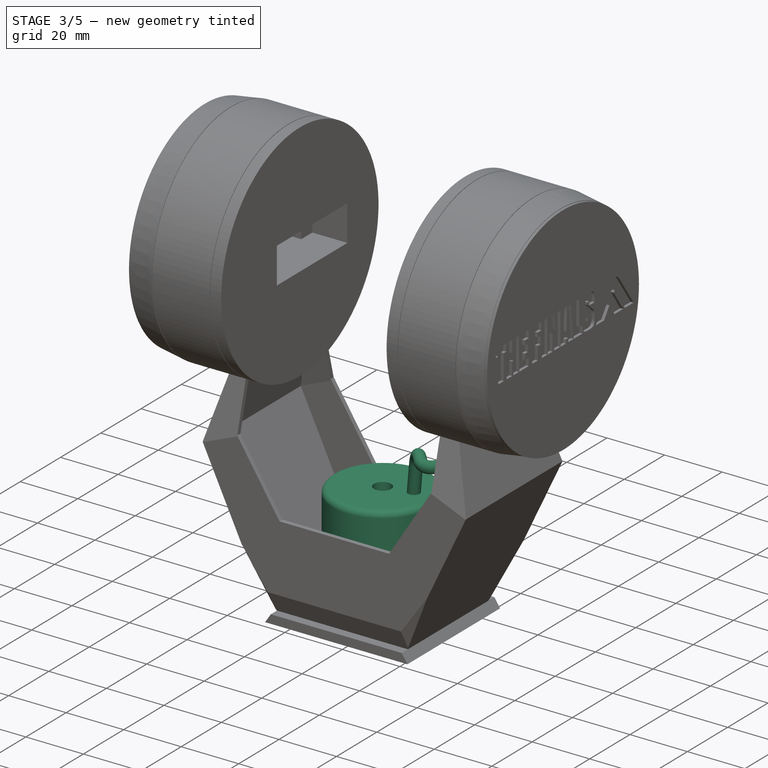
[diagram: stage 3 of 5 — iso view after this stage's code; geometry added in this stage tinted green]
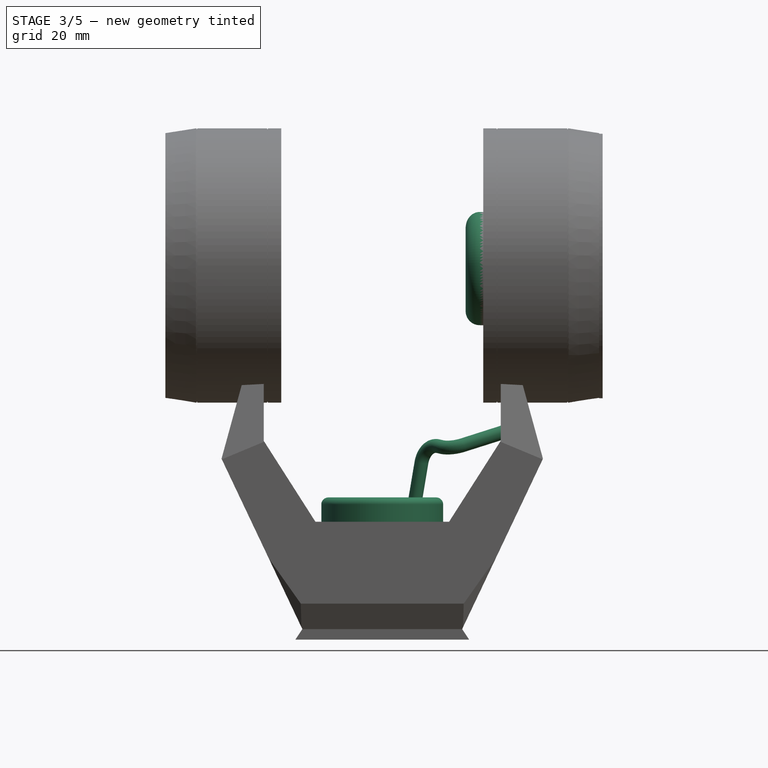
[diagram: stage 3 of 5 — front view after this stage's code; geometry added in this stage tinted green]
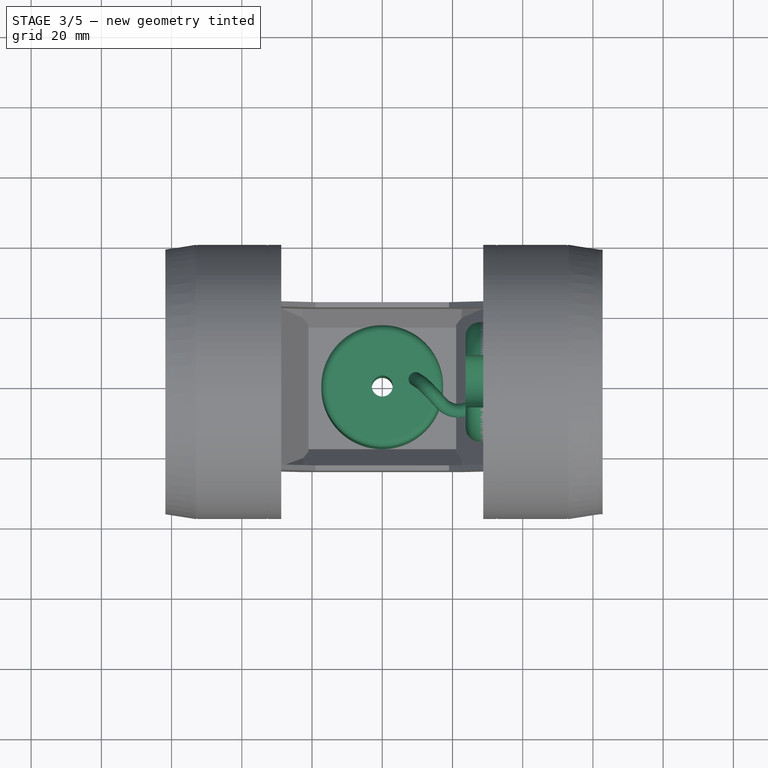
[diagram: stage 3 of 5 — top view after this stage's code; geometry added in this stage tinted green]
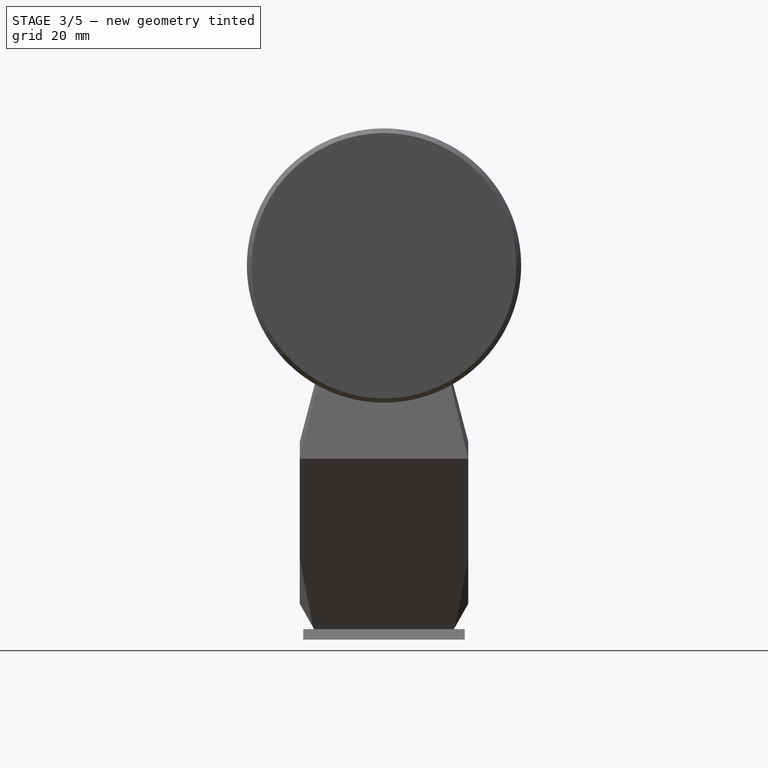
[diagram: stage 3 of 5 — right view after this stage's code; geometry added in this stage tinted green]
FEATURE [Sketcher::SketchObject] Sketch011
  ArcFitTolerance = 1e-06
  AttachmentSupport = -> [Pocket004]
  FullyConstrained = true
  MakeInternals = false
  MapMode = 5
  Placement = pos=(-40.9553,0,0) rot=(0.57735,0.57735,0.57735;2.0944rad)
  sketch-geometry (4):
    g0: Circle CenterX=-8.9 CenterY=82.55 CenterZ=0 NormalX=0 NormalY=0 NormalZ=1 AngleXU=0 Radius=1
    g1: Circle CenterX=21.1 CenterY=82.55 CenterZ=0 NormalX=0 NormalY=0 NormalZ=1 AngleXU=0 Radius=1
    g2: LineSegment [constr] StartX=-8.9 StartY=82.55 StartZ=0 EndX=-5.9 EndY=82.55 EndZ=0
    g3: LineSegment [constr] StartX=21.1 StartY=82.55 StartZ=0 EndX=18.1 EndY=82.55 EndZ=0
  constraints (10):
    c: Diameter(g0) = 2
    c: Equal(g0,g1)
    c: Coincident(g2,g0)
    c: Symmetric(g-4,g-4,g2)
    c: Horizontal(g2)
    c: Coincident(g3,g1)
    c: Symmetric(g-5,g-5,g3)
    c: Horizontal(g3)
    c: Equal(g2,g3)
    c: DistanceX(g2,g2) = 3
FEATURE [PartDesign::Pocket] Pocket005
  BaseFeature = -> Pocket004
  Direction = (-1,0,0)
  Length = 8
  Length2 = 5
  Profile = -> Sketch011
  ReferenceAxis = -> Sketch011 [N_Axis]
  Refine = true
  Suppressed = false
  Type = 0
FEATURE [Sketcher::SketchObject] Sketch012
  ArcFitTolerance = 1e-06
  AttachmentSupport = -> [Pocket005]
  ExternalGeometry = -> [Pocket005]
  FullyConstrained = true
  MakeInternals = false
  MapMode = 5
  Placement = pos=(0,0,-22.5) rot=(0,0,1;0rad)
  sketch-geometry (1):
    g0: Circle CenterX=0 CenterY=0 CenterZ=0 NormalX=0 NormalY=0 NormalZ=1 AngleXU=0 Radius=17.3507
  constraints (3):
    c: Coincident(g0,g-1)
    c: Tangent(g0,g-3)
    c: Diameter(g0) = 34.7015
FEATURE [PartDesign::Pad] Pad002
  BaseFeature = -> Pocket005
  Direction = (0,0,1)
  Length = 39
  Length2 = 10
  Profile = -> Sketch012
  ReferenceAxis = -> Sketch012 [N_Axis]
  Refine = true
  Suppressed = false
  Type = 0
FEATURE [PartDesign::Fillet] Fillet
  Base = -> Pad002 [Edge58]
  BaseFeature = -> Pad002
  Radius = 2
  Refine = true
  SupportTransform = false
  Suppressed = false
  UseAllEdges = false
FEATURE [Sketcher::SketchObject] Sketch013
  ArcFitTolerance = 1e-06
  AttachmentSupport = -> [Fillet]
  FullyConstrained = true
  MakeInternals = false
  MapMode = 5
  Placement = pos=(0,0,16.5) rot=(0,0,1;0rad)
  sketch-geometry (1):
    g0: Circle CenterX=0 CenterY=0 CenterZ=0 NormalX=0 NormalY=0 NormalZ=1 AngleXU=0 Radius=3
  constraints (2):
    c: Coincident(g0,g-1)
    c: Diameter(g0) = 6
FEATURE [PartDesign::Pocket] Pocket006
  BaseFeature = -> Fillet
  Direction = (0,0,-1)
  Length = 5
  Length2 = 5
  Profile = -> Sketch013
  ReferenceAxis = -> Sketch013 [N_Axis]
  Refine = true
  Suppressed = false
  Type = 1
FEATURE [Sketcher::SketchObject] Sketch017
  ArcFitTolerance = 1e-06
  AttachmentSupport = -> [Pocket006]
  FullyConstrained = true
  MakeInternals = false
  MapMode = 5
  Placement = pos=(28.7553,0,0) rot=(0.57735,-0.57735,-0.57735;2.0944rad)
  sketch-geometry (2):
    g0: Circle CenterX=0 CenterY=82.55 CenterZ=0 NormalX=0 NormalY=0 NormalZ=1 AngleXU=0 Radius=17
    g1: Circle CenterX=0 CenterY=82.55 CenterZ=0 NormalX=0 NormalY=0 NormalZ=1 AngleXU=0 Radius=7.5
  constraints (4):
    c: Coincident(g0,g-3)
    c: Diameter(g0) = 34
    c: Coincident(g1,g0)
    c: Diameter(g1) = 15
FEATURE [PartDesign::Pad] Pad003
  BaseFeature = -> Pocket006
  Direction = (-1,0,0)
  Length = 5
  Length2 = 10
  Profile = -> Sketch017
  ReferenceAxis = -> Sketch017 [N_Axis]
  Refine = true
  Suppressed = false
  Type = 0
FEATURE [PartDesign::Fillet] Fillet002
  Base = -> Pad003 [Edge223]
  BaseFeature = -> Pad003
  Radius = 4
  Refine = true
  SupportTransform = false
  Suppressed = false
  UseAllEdges = false
FEATURE [Sketcher::SketchObject] Sketch018
  ArcFitTolerance = 1e-06
  AttachmentSupport = -> [Fillet002]
  ExternalGeometry = -> [Fillet002]
  FullyConstrained = true
  MakeInternals = false
  MapMode = 5
  Placement = pos=(23.7553,0,0) rot=(0.57735,-0.57735,-0.57735;2.0944rad)
  sketch-geometry (6):
    g0: LineSegment StartX=7.5 StartY=82.55 StartZ=0 EndX=7.5 EndY=105.67 EndZ=0
    g1: LineSegment StartX=7.5 StartY=105.67 StartZ=0 EndX=-7.5 EndY=105.67 EndZ=0
    g2: LineSegment StartX=-7.5 StartY=105.67 StartZ=0 EndX=-7.5 EndY=82.55 EndZ=0
    g3: ArcOfCircle CenterX=0 CenterY=82.55 CenterZ=0 NormalX=0 NormalY=0 NormalZ=1 AngleXU=0 Radius=7.5 StartAngle=3.14159 EndAngle=6.28319
    g4: LineSegment [constr] StartX=-7.5 StartY=82.55 StartZ=0 EndX=0 EndY=82.55 EndZ=0
    g5: LineSegment [constr] StartX=0 StartY=82.55 StartZ=0 EndX=7.5 EndY=82.55 EndZ=0
  constraints (16):
    c: Coincident(g0,g1)
    c: Coincident(g1,g2)
    c: Horizontal(g1)
    c: Vertical(g0)
    c: Vertical(g2)
    c: PointOnObject(g2,g-3)
    c: DistanceY(g0,g0) = 23.12
    c: Coincident(g3,g-3)
    c: Coincident(g3,g0)
    c: Coincident(g3,g2)
    c: Coincident(g4,g2)
    c: Coincident(g4,g3)
    c: Horizontal(g4)
    c: Coincident(g5,g3)
    c: Coincident(g5,g0)
    c: Horizontal(g5)
FEATURE [PartDesign::Pocket] Pocket009
  BaseFeature = -> Fillet002
  Direction = (1,0,0)
  Length = 10
  Length2 = 5
  Profile = -> Sketch018
  ReferenceAxis = -> Sketch018 [N_Axis]
  Refine = true
  Suppressed = false
  Type = 0
FEATURE [Sketcher::SketchObject] Sketch019
  ArcFitTolerance = 1e-06
  AttachmentSupport = -> [Pocket009]
  FullyConstrained = true
  MakeInternals = false
  MapMode = 5
  Placement = pos=(0,0,16.5) rot=(0,0,1;0rad)
  sketch-geometry (2):
    g0: Circle CenterX=9.5 CenterY=1.94 CenterZ=0 NormalX=0 NormalY=0 NormalZ=1 AngleXU=0 Radius=2
    g1: GeomPoint X=9.5 Y=1.94 Z=0
  constraints (4):
    c: Diameter(g0) = 4
    c: Distance(g0,g-1) = 1.94
    c: Distance(g0,g-2) = 9.5
    c: Coincident(g1,g0)
FEATURE [Sketcher::SketchObject] Sketch020
  ArcFitTolerance = 1e-06
  AttachmentSupport = -> [Pocket009]
  FullyConstrained = true
  MakeInternals = false
  MapMode = 5
  Placement = pos=(48.1419,-8e-15,13.1882) rot=(0.62233,-0.62233,-0.474775;2.25506rad)
  sketch-geometry (2):
    g0: Circle CenterX=2.74 CenterY=25.01 CenterZ=0 NormalX=0 NormalY=0 NormalZ=1 AngleXU=0 Radius=2
    g1: GeomPoint X=2.74 Y=25.01 Z=0
  constraints (4):
    c: Diameter(g0) = 4
    c: Distance(g0,g-2) = 2.74
    c: Distance(g0,g-1) = 25.01
    c: Coincident(g1,g0)
FEATURE [Sketcher::SketchObject] Sketch021
  ArcFitTolerance = 1e-06
  AttachmentSupport = -> [XZ_Plane]
  FullyConstrained = true
  MakeInternals = false
  MapMode = 5
  Placement = pos=(0,0,0) rot=(1,0,0;1.5708rad)
  sketch-geometry (1):
    g0: GeomPoint X=12.1 Y=32 Z=0
  constraints (2):
    c: Distance(g0,g-2) = 12.1
    c: DistanceY(g-1,g0) = 32
FEATURE [PartDesign::Plane] DatumPlane004
  AttachmentOffset = pos=(0,0,8) rot=(0,0,1;0rad)
  AttachmentSupport = -> [XZ_Plane]
  Length = 150.423
  MapMode = 5
  Placement = pos=(0,-8,1.8e-15) rot=(1,0,0;1.5708rad)
  ResizeMode = 0
  Width = 173.518
FEATURE [Sketcher::SketchObject] Sketch022
  ArcFitTolerance = 1e-06
  AttachmentSupport = -> [DatumPlane004]
  FullyConstrained = true
  MakeInternals = false
  MapMode = 5
  Placement = pos=(0,-8,1.8e-15) rot=(1,0,0;1.5708rad)
  sketch-geometry (1):
    g0: GeomPoint X=19.39 Y=30.27 Z=0
  constraints (2):
    c: DistanceX(g-1,g0) = 19.39
    c: DistanceY(g-1,g0) = 30.27
FEATURE [Part::Part2DObjectPython] Wire  # Draft 2D object (typed FeaturePython)
  Area = 0
  ChamferSize = 0
  Closed = false
  End = (41.5341,-2.74,37.3095)
  FilletRadius = 6
  Length = 47.4275
  MakeFace = true
  Placement = pos=(9.5,1.94,16.5) rot=(0,0,1;0rad)
  Points = (4) [(0,0,0),(2.6,-1.94,15.5),(9.89,-9.94,13.77),(32.0341,-4.68,20.8095)]
  Start = (9.5,1.94,16.5)
  Subdivisions = 0
FEATURE [PartDesign::ShapeBinder] CopyWire
  Placement = pos=(9.5,1.94,16.5) rot=(0,0,1;0rad)
  TraceSupport = false
FEATURE [PartDesign::AdditivePipe] AdditivePipe
  AuxilleryCurvelinear = true
  AuxillerySpineTangent = false
  BaseFeature = -> Pocket009
  Binormal = (0,0,0)
  Mode = 0
  Profile = -> Sketch019
  Refine = true
  Sections = -> [Sketch020]
  Spine = -> CopyWire [Edge1,Edge2,Edge3,Edge4,Edge5]
  SpineTangent = false
  Suppressed = false
  Transformation = 1
  Transition = 0
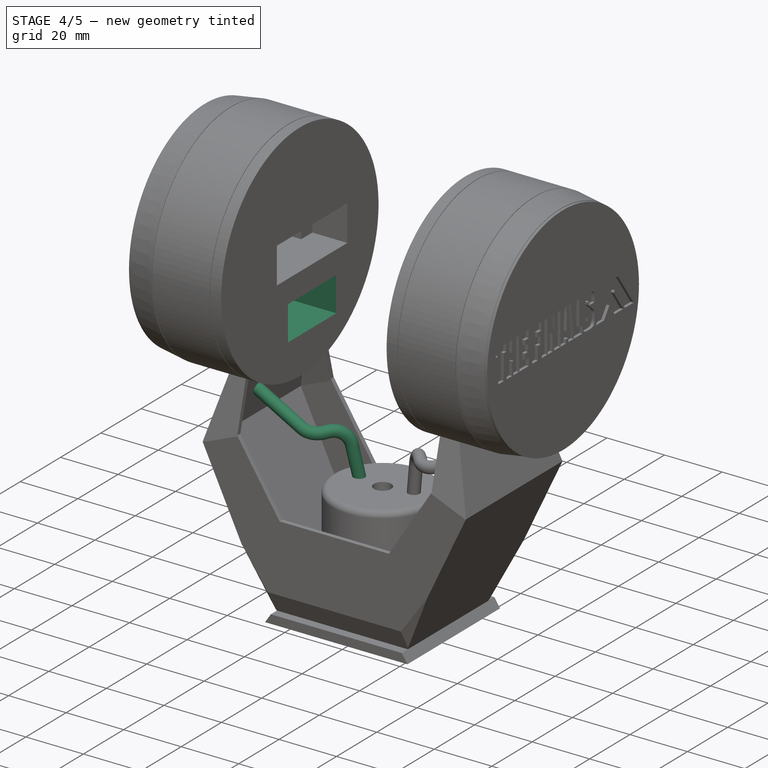
[diagram: stage 4 of 5 — iso view after this stage's code; geometry added in this stage tinted green]
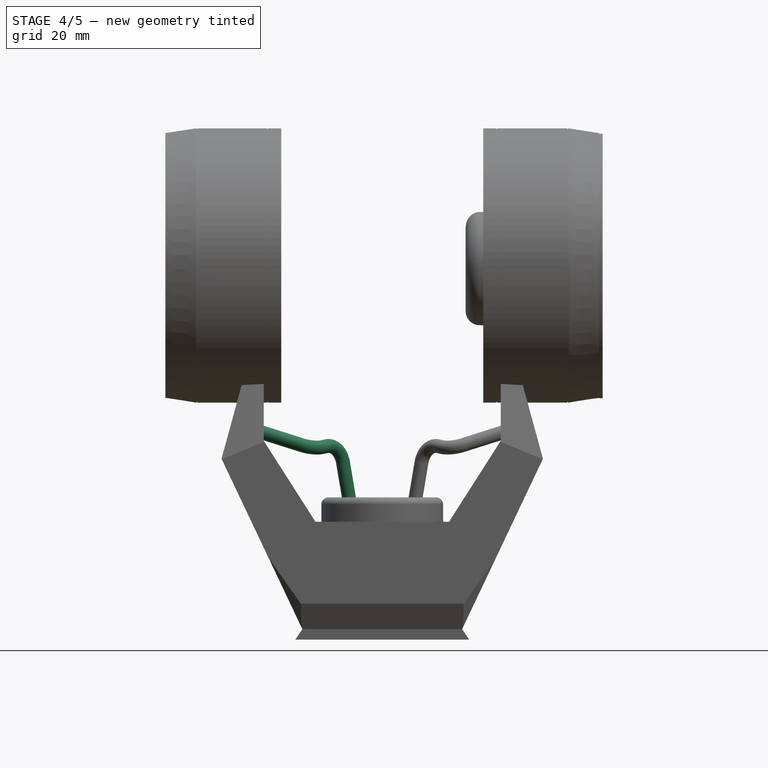
[diagram: stage 4 of 5 — front view after this stage's code; geometry added in this stage tinted green]
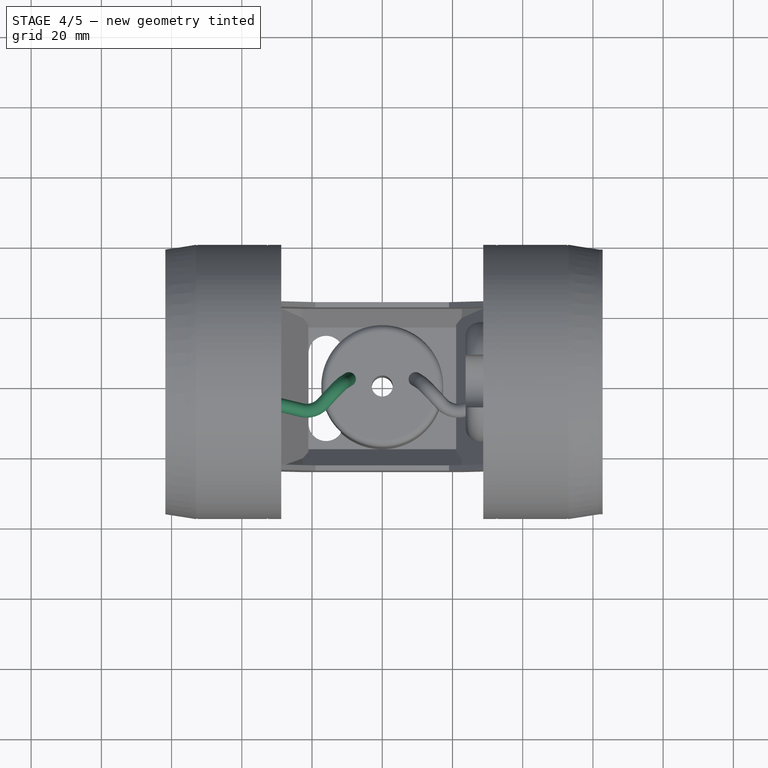
[diagram: stage 4 of 5 — top view after this stage's code; geometry added in this stage tinted green]
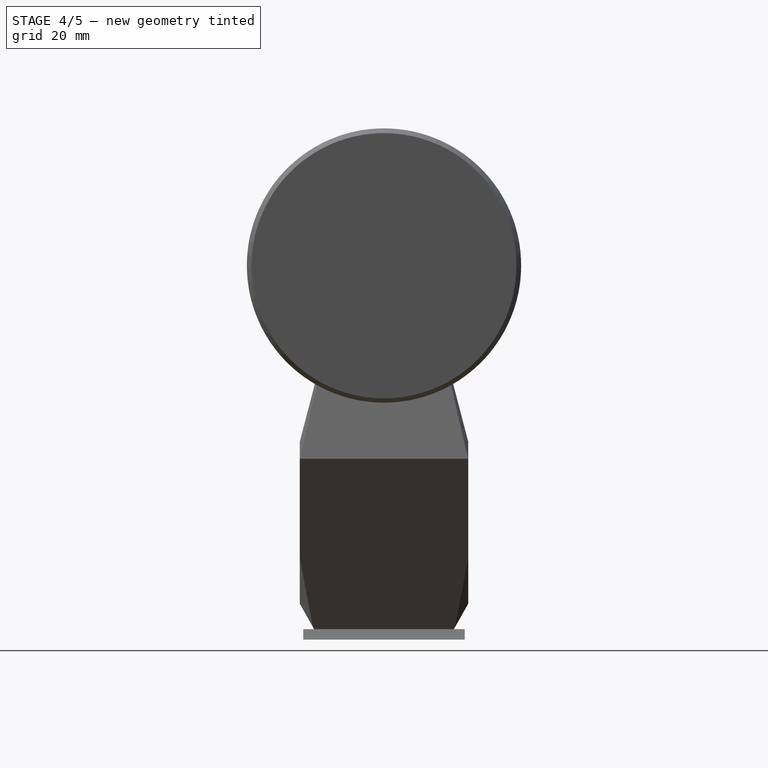
[diagram: stage 4 of 5 — right view after this stage's code; geometry added in this stage tinted green]
FEATURE [Sketcher::SketchObject] Sketch023
  ArcFitTolerance = 1e-06
  AttachmentSupport = -> [AdditivePipe]
  ExternalGeometry = -> [AdditivePipe]
  FullyConstrained = true
  MakeInternals = false
  MapMode = 5
  Placement = pos=(2.75e-14,4.96e-14,76.3) rot=(0,0,1;0rad)
  sketch-geometry (4):
    g0: LineSegment StartX=-59.7553 StartY=-5.9 StartZ=0 EndX=-47.7553 EndY=-5.9 EndZ=0
    g1: LineSegment StartX=-47.7553 StartY=-5.9 StartZ=0 EndX=-47.7553 EndY=18.1 EndZ=0
    g2: LineSegment StartX=-47.7553 StartY=18.1 StartZ=0 EndX=-59.7553 EndY=18.1 EndZ=0
    g3: LineSegment StartX=-59.7553 StartY=18.1 StartZ=0 EndX=-59.7553 EndY=-5.9 EndZ=0
  constraints (11):
    c: Coincident(g0,g1)
    c: Coincident(g1,g2)
    c: Coincident(g2,g3)
    c: Coincident(g3,g0)
    c: Horizontal(g0)
    c: Horizontal(g2)
    c: Vertical(g1)
    c: Vertical(g3)
    c: Coincident(g0,g-6)
    c: PointOnObject(g1,g-5)
    c: DistanceX(g0,g0) = 12
FEATURE [PartDesign::Pocket] Pocket010
  BaseFeature = -> AdditivePipe
  Direction = (0,0,-1)
  Length = 20
  Length2 = 5
  Profile = -> Sketch023
  ReferenceAxis = -> Sketch023 [N_Axis]
  Refine = true
  Suppressed = false
  Type = 0
FEATURE [Sketcher::SketchObject] Sketch024
  ArcFitTolerance = 1e-06
  AttachmentSupport = -> [Pocket010]
  ExternalGeometry = -> [Pocket010]
  FullyConstrained = true
  MakeInternals = false
  MapMode = 5
  Placement = pos=(-59.7553,0,0) rot=(0.57735,0.57735,0.57735;2.0944rad)
  sketch-geometry (4):
    g0: LineSegment StartX=-5.9 StartY=68.3 StartZ=0 EndX=-5.9 EndY=56.3 EndZ=0
    g1: LineSegment StartX=-5.9 StartY=56.3 StartZ=0 EndX=18.1 EndY=56.3 EndZ=0
    g2: LineSegment StartX=18.1 StartY=56.3 StartZ=0 EndX=18.1 EndY=68.3 EndZ=0
    g3: LineSegment StartX=18.1 StartY=68.3 StartZ=0 EndX=-5.9 EndY=68.3 EndZ=0
  constraints (12):
    c: Coincident(g0,g1)
    c: Coincident(g1,g2)
    c: Coincident(g2,g3)
    c: Coincident(g3,g0)
    c: Vertical(g0)
    c: Vertical(g2)
    c: Horizontal(g1)
    c: Horizontal(g3)
    c: DistanceY(g0,g0) = 12
    c: Vertical(g0,g-4)
    c: PointOnObject(g-4,g2)
    c: DistanceY(g0,g-4) = 8
FEATURE [PartDesign::Pocket] Pocket011
  BaseFeature = -> Pocket010
  Direction = (-1,0,0)
  Length = 36
  Length2 = 5
  Profile = -> Sketch024
  ReferenceAxis = -> Sketch024 [N_Axis]
  Refine = true
  Reversed = true
  Suppressed = false
  Type = 0
FEATURE [Sketcher::SketchObject] Sketch025
  ArcFitTolerance = 1e-06
  AttachmentSupport = -> [Pocket011]
  FullyConstrained = true
  MakeInternals = false
  MapMode = 5
  Placement = pos=(0,0,-24) rot=(1,0,0;3.14159rad)
  sketch-geometry (6):
    g0: ArcOfCircle CenterX=-16 CenterY=10 CenterZ=0 NormalX=0 NormalY=0 NormalZ=1 AngleXU=0 Radius=5 StartAngle=2e-16 EndAngle=3.14159
    g1: ArcOfCircle CenterX=-16 CenterY=-10 CenterZ=0 NormalX=0 NormalY=0 NormalZ=1 AngleXU=0 Radius=5 StartAngle=3.14159 EndAngle=6.28319
    g2: LineSegment StartX=-11 StartY=10 StartZ=0 EndX=-11 EndY=-10 EndZ=0
    g3: LineSegment StartX=-21 StartY=10 StartZ=0 EndX=-21 EndY=-10 EndZ=0
    g4: LineSegment [constr] StartX=-16 StartY=10 StartZ=0 EndX=-16 EndY=0 EndZ=0
    g5: LineSegment [constr] StartX=-16 StartY=0 StartZ=0 EndX=-16 EndY=-10 EndZ=0
  constraints (15):
    c: Tangent(g0,g2) = 1.5708
    c: Tangent(g0,g3) = -1.5708
    c: Tangent(g1,g2) = 1.5708
    c: Tangent(g1,g3) = -1.5708
    c: Equal(g0,g1)
    c: Vertical(g2)
    c: Coincident(g4,g0)
    c: PointOnObject(g4,g-1)
    c: Vertical(g4)
    c: Coincident(g5,g4)
    c: Coincident(g5,g1)
    c: Equal(g5,g4)
    c: DistanceY(g5,g5) = 10
    c: Radius(g0) = 5
    c: Distance(g-2,g4) = 16
FEATURE [PartDesign::Pocket] Pocket012
  BaseFeature = -> Pocket011
  Direction = (0,0,1)
  Length = 20
  Length2 = 5
  Profile = -> Sketch025
  ReferenceAxis = -> Sketch025 [N_Axis]
  Refine = true
  Suppressed = false
  Type = 0
FEATURE [PartDesign::Mirrored] Mirrored003
  BaseFeature = -> Pocket012
  MirrorPlane = -> Sketch019 [V_Axis]
  Originals = -> [AdditivePipe]
  Refine = true
  Suppressed = false
  TransformMode = 0
FEATURE [PartDesign::Hole] Hole
  BaseFeature = -> Mirrored003
  CustomThreadClearance = 0
  Depth = 5
  DepthType = 0
  Diameter = 2.4
  DrillForDepth = false
  DrillPoint = 0
  DrillPointAngle = 118
  HoleCutCountersinkAngle = 90
  HoleCutCustomValues = false
  HoleCutDepth = 0
  HoleCutDiameter = 6.1
  HoleCutType = 0
  ModelThread = true
  Profile = -> Sketch011
  Refine = true
  Suppressed = false
  Tapered = false
  TaperedAngle = 90
  ThreadClass = 4
  ThreadDepth = 5
  ThreadDepthType = 0
  ThreadDirection = 0
  ThreadFit = 0
  ThreadSize = 6
  ThreadType = 1
  Threaded = false
  UseCustomThreadClearance = false
FEATURE [PartDesign::Fillet] Fillet003
  Base = -> Hole [Edge305,Edge322]
  BaseFeature = -> Hole
  Radius = 3
  Refine = true
  SupportTransform = false
  Suppressed = false
  UseAllEdges = false
FEATURE [PartDesign::Body] Body001  label="ServoArmFitTest"
  AllowCompound = false
  Group = -> [Sketch026,Pad004,Sketch027,Pad005,Sketch028,Pad006]
  Origin = -> Origin001
  Tip = -> Pad006
FEATURE [Sketcher::SketchObject] Sketch029
  ArcFitTolerance = 1e-06
  AttachmentSupport = -> [Fillet003]
  FullyConstrained = false
  MakeInternals = false
  MapMode = 5
  Placement = pos=(0,0,-24) rot=(1,0,0;3.14159rad)
  sketch-geometry (16):
    g0: ArcOfCircle CenterX=2.11 CenterY=0 CenterZ=0 NormalX=0 NormalY=0 NormalZ=1 AngleXU=0 Radius=6.01 StartAngle=3.14159 EndAngle=3.55238
    g1: LineSegment StartX=-3.4 StartY=-2.4 StartZ=0 EndX=-3.28851 EndY=-2.65595 EndZ=0
    g2: LineSegment StartX=-3.28851 StartY=-2.65595 StartZ=0 EndX=-2.6 EndY=-14 EndZ=0
    g3: ArcOfCircle CenterX=0 CenterY=-13.6804 CenterZ=0 NormalX=0 NormalY=0 NormalZ=1 AngleXU=0 Radius=2.61957 StartAngle=3.26389 EndAngle=4.71239
    g4: ArcOfCircle CenterX=-2.11 CenterY=0 CenterZ=0 NormalX=0 NormalY=0 NormalZ=1 AngleXU=0 Radius=6.01 StartAngle=5.87239 EndAngle=6.28319
    g5: LineSegment StartX=3.4 StartY=-2.4 StartZ=0 EndX=3.28851 EndY=-2.65595 EndZ=0
    g6: LineSegment StartX=3.28851 StartY=-2.65595 StartZ=0 EndX=2.6 EndY=-14 EndZ=0
    g7: ArcOfCircle CenterX=0 CenterY=-13.6804 CenterZ=0 NormalX=0 NormalY=0 NormalZ=1 AngleXU=0 Radius=2.61957 StartAngle=4.71239 EndAngle=6.16089
    g8: ArcOfCircle CenterX=2.11 CenterY=0 CenterZ=0 NormalX=0 NormalY=0 NormalZ=1 AngleXU=0 Radius=6.01 StartAngle=2.7308 EndAngle=3.14159
    g9: LineSegment StartX=-3.4 StartY=2.4 StartZ=0 EndX=-3.28851 EndY=2.65595 EndZ=0
    g10: LineSegment StartX=-3.28851 StartY=2.65595 StartZ=0 EndX=-2.6 EndY=14 EndZ=0
    g11: ArcOfCircle CenterX=0 CenterY=13.6804 CenterZ=0 NormalX=0 NormalY=0 NormalZ=1 AngleXU=0 Radius=2.61957 StartAngle=1.5708 EndAngle=3.0193
    g12: ArcOfCircle CenterX=-2.11 CenterY=0 CenterZ=0 NormalX=0 NormalY=0 NormalZ=1 AngleXU=0 Radius=6.01 StartAngle=6.28319 EndAngle=6.69398
    g13: LineSegment StartX=3.4 StartY=2.4 StartZ=0 EndX=3.28852 EndY=2.65595 EndZ=0
    g14: LineSegment StartX=3.28852 StartY=2.65595 StartZ=0 EndX=2.6 EndY=14 EndZ=0
    g15: ArcOfCircle CenterX=0 CenterY=13.6804 CenterZ=0 NormalX=0 NormalY=0 NormalZ=1 AngleXU=0 Radius=2.61957 StartAngle=0.122296 EndAngle=1.5708
  constraints (17):
    c: Tangent(g0,g1) = -1.5708
    c: Coincident(g1,g2)
    c: Coincident(g3,g2)
    c: Tangent(g4,g5) = 1.5708
    c: Coincident(g5,g6)
    c: Coincident(g7,g6)
    c: Tangent(g8,g9) = 1.5708
    c: Coincident(g9,g10)
    c: Coincident(g11,g10)
    c: Tangent(g12,g13) = -1.5708
    c: Coincident(g13,g14)
    c: Coincident(g15,g14)
    c: Coincident(g15,g11)
    c: Coincident(g11,g15)
    c: Coincident(g3,g7)
    c: Coincident(g0,g8)
    c: Coincident(g4,g12)
FEATURE [PartDesign::Pocket] Pocket013
  BaseFeature = -> Fillet003
  Direction = (0,0,1)
  Length = 5.6
  Length2 = 5
  Profile = -> Sketch029
  ReferenceAxis = -> Sketch029 [N_Axis]
  Refine = true
  Suppressed = false
  Type = 0
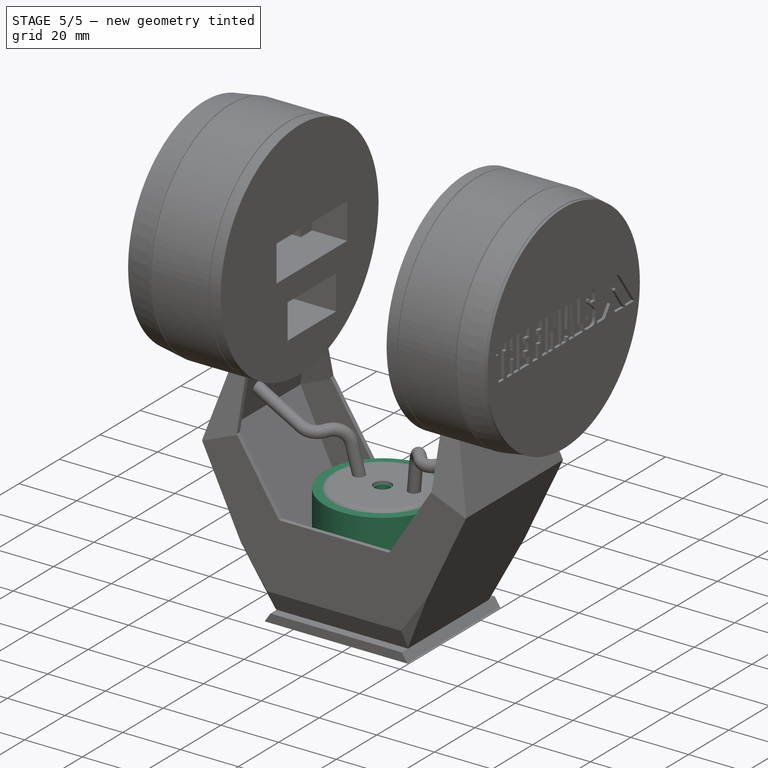
[diagram: stage 5 of 5 — iso view after this stage's code; geometry added in this stage tinted green]
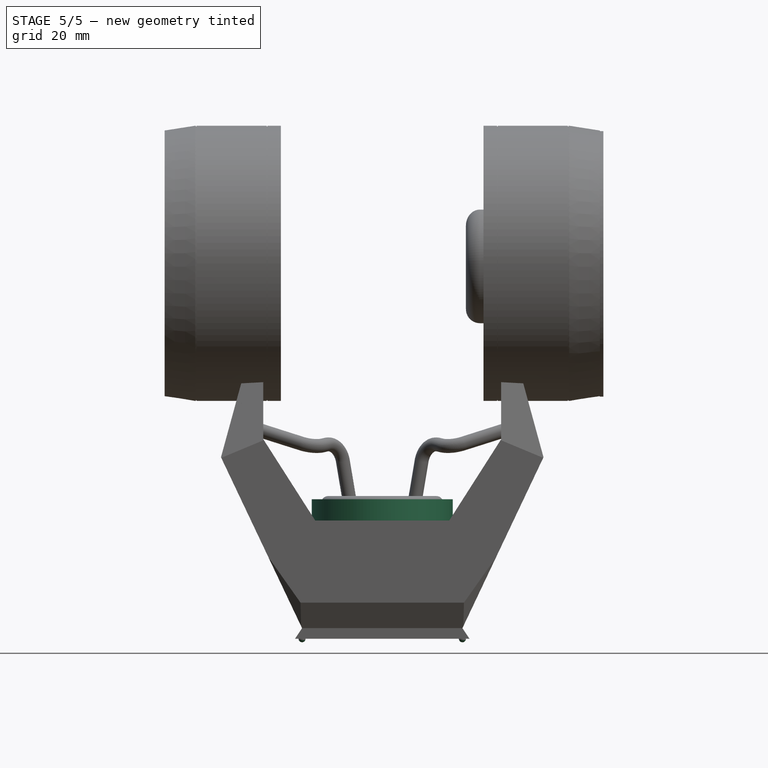
[diagram: stage 5 of 5 — front view after this stage's code; geometry added in this stage tinted green]
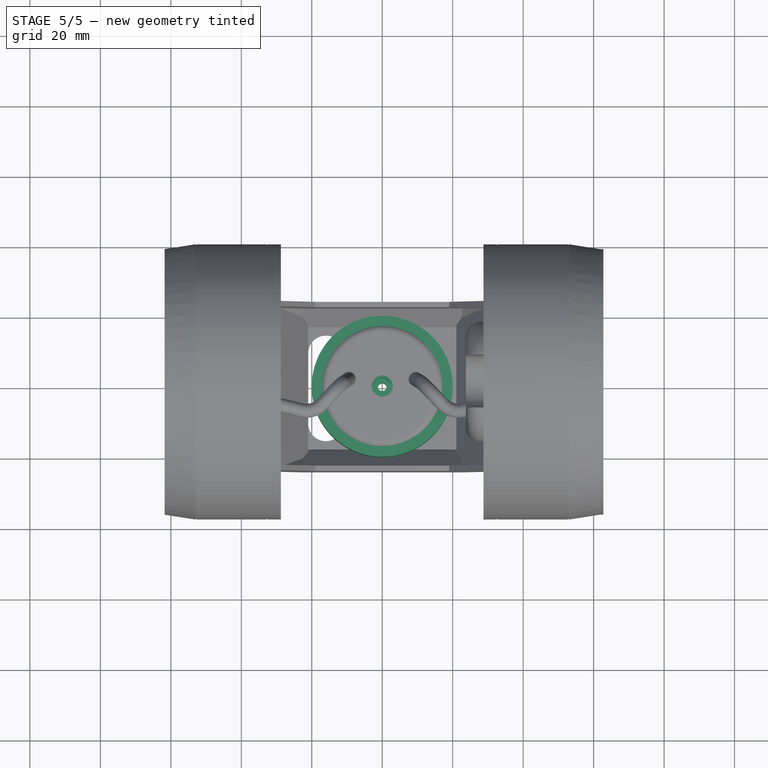
[diagram: stage 5 of 5 — top view after this stage's code; geometry added in this stage tinted green]
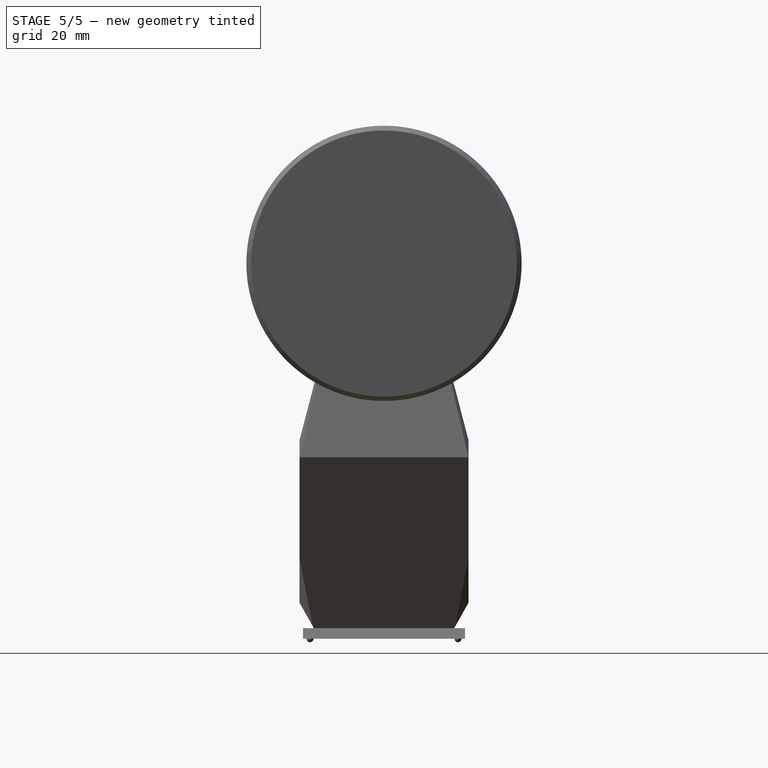
[diagram: stage 5 of 5 — right view after this stage's code; geometry added in this stage tinted green]
FEATURE [Image::ImagePlane] servoarmreference
  Placement = pos=(-8.56379,2.14979,-27) rot=(0,0,-1;0.017453rad)
  XSize = 110.205
  YSize = 61.9906
FEATURE [Sketcher::SketchObject] Sketch026
  ArcFitTolerance = 1e-06
  AttachmentSupport = -> [XY_Plane001]
  FullyConstrained = false
  MakeInternals = false
  MapMode = 5
  sketch-geometry (17):
    g0: ArcOfCircle CenterX=0 CenterY=-2.11 CenterZ=0 NormalX=0 NormalY=0 NormalZ=1 AngleXU=0 Radius=6.01 StartAngle=1.5708 EndAngle=1.98159
    g1: LineSegment StartX=-2.4 StartY=3.4 StartZ=0 EndX=-2.65595 EndY=3.28851 EndZ=0
    g2: LineSegment StartX=-2.65595 StartY=3.28851 StartZ=0 EndX=-14 EndY=2.6 EndZ=0
    g3: ArcOfCircle CenterX=-13.6804 CenterY=0 CenterZ=0 NormalX=0 NormalY=0 NormalZ=1 AngleXU=0 Radius=2.61957 StartAngle=1.69309 EndAngle=3.14159
    g4: Circle CenterX=0 CenterY=-0.05 CenterZ=0 NormalX=0 NormalY=0 NormalZ=1 AngleXU=0 Radius=20
    g5: ArcOfCircle CenterX=0 CenterY=2.11 CenterZ=0 NormalX=0 NormalY=0 NormalZ=1 AngleXU=0 Radius=6.01 StartAngle=4.3016 EndAngle=4.71239
    g6: LineSegment StartX=-2.4 StartY=-3.4 StartZ=0 EndX=-2.65595 EndY=-3.28851 EndZ=0
    g7: LineSegment StartX=-2.65595 StartY=-3.28851 StartZ=0 EndX=-14 EndY=-2.6 EndZ=0
    g8: ArcOfCircle CenterX=-13.6804 CenterY=0 CenterZ=0 NormalX=0 NormalY=0 NormalZ=1 AngleXU=0 Radius=2.61957 StartAngle=3.14159 EndAngle=4.59009
    g9: ArcOfCircle CenterX=0 CenterY=-2.11 CenterZ=0 NormalX=0 NormalY=0 NormalZ=1 AngleXU=0 Radius=6.01 StartAngle=1.16001 EndAngle=1.5708
    g10: LineSegment StartX=2.4 StartY=3.4 StartZ=0 EndX=2.65595 EndY=3.28851 EndZ=0
    g11: LineSegment StartX=2.65595 StartY=3.28851 StartZ=0 EndX=14 EndY=2.6 EndZ=0
    g12: ArcOfCircle CenterX=13.6804 CenterY=0 CenterZ=0 NormalX=0 NormalY=0 NormalZ=1 AngleXU=0 Radius=2.61957 StartAngle=1e-16 EndAngle=1.4485
    g13: ArcOfCircle CenterX=0 CenterY=2.11 CenterZ=0 NormalX=0 NormalY=0 NormalZ=1 AngleXU=0 Radius=6.01 StartAngle=4.71239 EndAngle=5.12318
    g14: LineSegment StartX=2.4 StartY=-3.4 StartZ=0 EndX=2.65595 EndY=-3.28851 EndZ=0
    g15: LineSegment StartX=2.65595 StartY=-3.28851 StartZ=0 EndX=14 EndY=-2.6 EndZ=0
    g16: ArcOfCircle CenterX=13.6804 CenterY=0 CenterZ=0 NormalX=0 NormalY=0 NormalZ=1 AngleXU=0 Radius=2.61957 StartAngle=4.83469 EndAngle=6.28319
  constraints (23):
    c: PointOnObject(g0,g-2)
    c: DistanceY(g-1,g0) = 3.9
    c: Distance(g0,g-1) = 3.4
    c: Distance(g0,g-2) = 2.4
    c: PointOnObject(g0,g-2)
    c: Tangent(g0,g1) = -1.5708
    c: Coincident(g1,g2)
    c: Coincident(g3,g2)
    c: PointOnObject(g3,g-1)
    c: Distance(g2,g-1) = 2.6
    c: PointOnObject(g3,g-1)
    c: DistanceX(g2,g-1) = 14
    c: DistanceX(g3,g-1) = 16.3
    c: Diameter(g4) = 40
    c: Tangent(g5,g6) = 1.5708
    c: Coincident(g6,g7)
    c: Coincident(g8,g7)
    c: Tangent(g9,g10) = 1.5708
    c: Coincident(g10,g11)
    c: Coincident(g12,g11)
    c: Tangent(g13,g14) = -1.5708
    c: Coincident(g14,g15)
    c: Coincident(g16,g15)
FEATURE [PartDesign::Pad] Pad004
  Direction = (0,0,1)
  Length = 5.6
  Length2 = 10
  Profile = -> Sketch026
  ReferenceAxis = -> Sketch026 [N_Axis]
  Refine = true
  Suppressed = false
  Type = 0
FEATURE [Sketcher::SketchObject] Sketch027
  ArcFitTolerance = 1e-06
  AttachmentSupport = -> [Pad004]
  ExternalGeometry = -> [Pad004]
  FullyConstrained = true
  MakeInternals = false
  MapMode = 5
  Placement = pos=(0,0,5.6) rot=(0,0,1;0rad)
  sketch-geometry (2):
    g0: Circle CenterX=0 CenterY=-0.05 CenterZ=0 NormalX=0 NormalY=0 NormalZ=1 AngleXU=0 Radius=20
    g1: Circle CenterX=0 CenterY=-0.05 CenterZ=0 NormalX=0 NormalY=0 NormalZ=1 AngleXU=0 Radius=2.5
  constraints (4):
    c: Coincident(g0,g-3)
    c: Equal(g0,g-3)
    c: Coincident(g1,g0)
    c: Diameter(g1) = 5
FEATURE [PartDesign::Pad] Pad005
  BaseFeature = -> Pad004
  Direction = (0,0,1)
  Length = 10
  Length2 = 10
  Profile = -> Sketch027
  ReferenceAxis = -> Sketch027 [N_Axis]
  Refine = true
  Suppressed = false
  Type = 0
FEATURE [Sketcher::SketchObject] Sketch028
  ArcFitTolerance = 1e-06
  AttachmentSupport = -> [Pad005]
  FullyConstrained = true
  MakeInternals = false
  MapMode = 5
  Placement = pos=(0,0,5.6) rot=(1,0,0;3.14159rad)
  sketch-geometry (2):
    g0: Circle CenterX=0 CenterY=0 CenterZ=0 NormalX=0 NormalY=0 NormalZ=1 AngleXU=0 Radius=3.07
    g1: Circle CenterX=0 CenterY=0 CenterZ=0 NormalX=0 NormalY=0 NormalZ=1 AngleXU=0 Radius=1.25
  constraints (4):
    c: Coincident(g0,g-1)
    c: Coincident(g1,g0)
    c: Diameter(g0) = 6.14
    c: Diameter(g1) = 2.5
FEATURE [PartDesign::Pad] Pad006
  BaseFeature = -> Pad005
  Direction = (0,0,-1)
  Length = 2
  Length2 = 10
  Profile = -> Sketch028
  ReferenceAxis = -> Sketch028 [N_Axis]
  Refine = true
  Reversed = true
  Suppressed = false
  Type = 0
FEATURE [Sketcher::SketchObject] Sketch030
  ArcFitTolerance = 1e-06
  AttachmentSupport = -> [Pocket013]
  FullyConstrained = true
  MakeInternals = false
  MapMode = 5
  Placement = pos=(0,0,-18.4) rot=(1,0,0;3.14159rad)
  sketch-geometry (2):
    g0: Circle CenterX=0 CenterY=0 CenterZ=0 NormalX=0 NormalY=0 NormalZ=1 AngleXU=0 Radius=3.67
    g1: Circle CenterX=0 CenterY=0 CenterZ=0 NormalX=0 NormalY=0 NormalZ=1 AngleXU=0 Radius=1.25
  constraints (4):
    c: Coincident(g0,g-1)
    c: Coincident(g1,g0)
    c: Diameter(g1) = 2.5
    c: Diameter(g0) = 7.34
FEATURE [PartDesign::Pad] Pad007
  BaseFeature = -> Pocket013
  Direction = (0,0,-1)
  Length = 2
  Length2 = 10
  Profile = -> Sketch030
  ReferenceAxis = -> Sketch030 [N_Axis]
  Refine = true
  Reversed = true
  Suppressed = false
  Type = 0
FEATURE [PartDesign::AdditiveSphere] Sphere
  Angle1 = -90
  Angle2 = 90
  Angle3 = 360
  AttacherType = Attacher::AttachEngine3D
  AttachmentOffset = pos=(-2,-2,0) rot=(0,0,1;0rad)
  AttachmentSupport = -> [Pad007]
  BaseFeature = -> Pad007
  MapMode = 1
  Placement = pos=(22.755,21,-24) rot=(1,0,0;3.14159rad)
  Radius = 1
  Refine = true
  Suppressed = false
FEATURE [PartDesign::AdditiveSphere] Sphere005
  Angle1 = -90
  Angle2 = 90
  Angle3 = 360
  AttacherType = Attacher::AttachEngine3D
  AttachmentOffset = pos=(2,2,0) rot=(0,0,1;0rad)
  AttachmentSupport = -> [Sphere]
  BaseFeature = -> Sphere
  MapMode = 6
  Placement = pos=(-22.755,21,-24) rot=(1,0,0;3.14159rad)
  Radius = 1
  Refine = true
  Suppressed = false
FEATURE [PartDesign::AdditiveSphere] Sphere006
  Angle1 = -90
  Angle2 = 90
  Angle3 = 360
  AttacherType = Attacher::AttachEngine3D
  AttachmentOffset = pos=(-2,-2,0) rot=(0,0,1;0rad)
  AttachmentSupport = -> [Sphere005]
  BaseFeature = -> Sphere005
  MapMode = 6
  Placement = pos=(22.755,-21,-24) rot=(1,0,0;3.14159rad)
  Radius = 1
  Refine = true
  Suppressed = false
FEATURE [PartDesign::AdditiveSphere] Sphere007
  Angle1 = -90
  Angle2 = 90
  Angle3 = 360
  AttacherType = Attacher::AttachEngine3D
  AttachmentOffset = pos=(2,-2,0) rot=(0,0,1;0rad)
  AttachmentSupport = -> [Sphere006]
  BaseFeature = -> Sphere006
  MapMode = 6
  Placement = pos=(-22.755,-21,-24) rot=(1,0,0;3.14159rad)
  Radius = 1
  Refine = true
  Suppressed = false
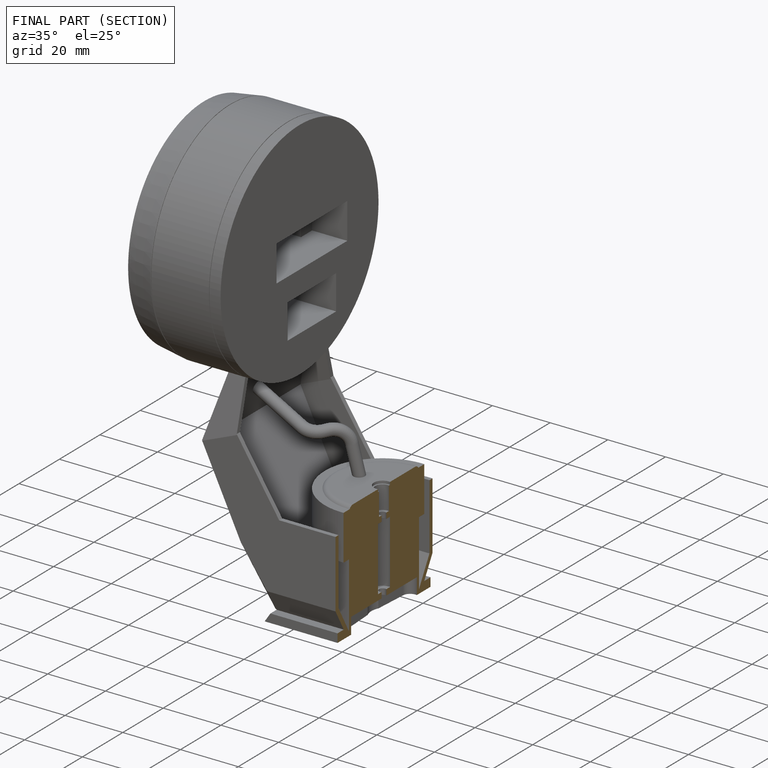
[diagram: finished part — half-section view (interior)]
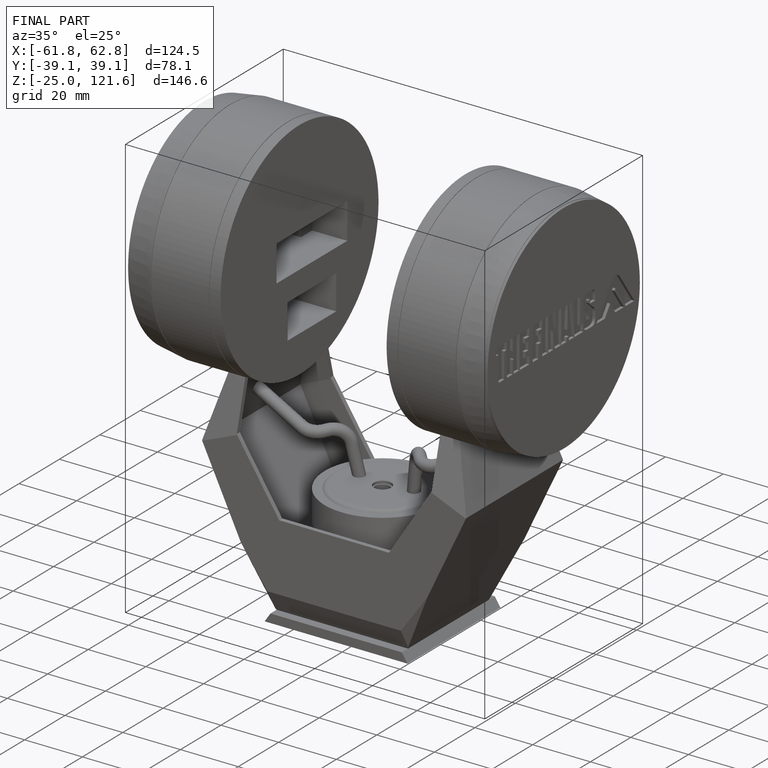
[diagram: finished part — iso view with bounding-box wireframe]
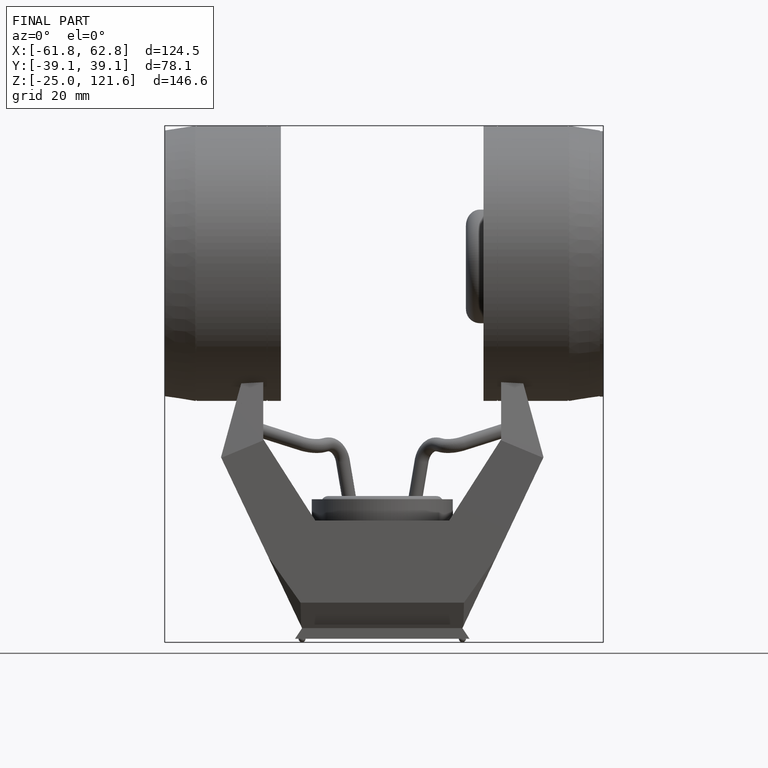
[diagram: finished part — front view with bounding-box wireframe]
